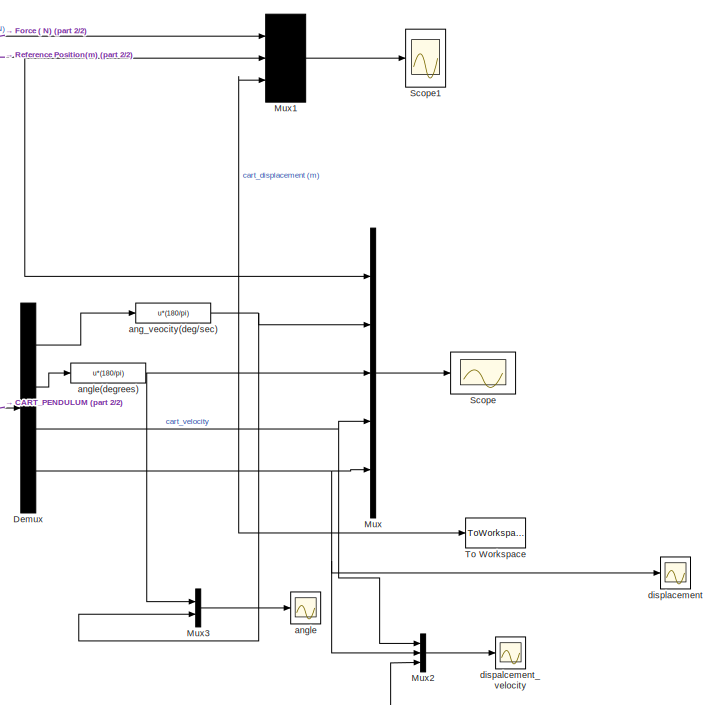
[diagram: root canvas - part 1/2, right side, full height]
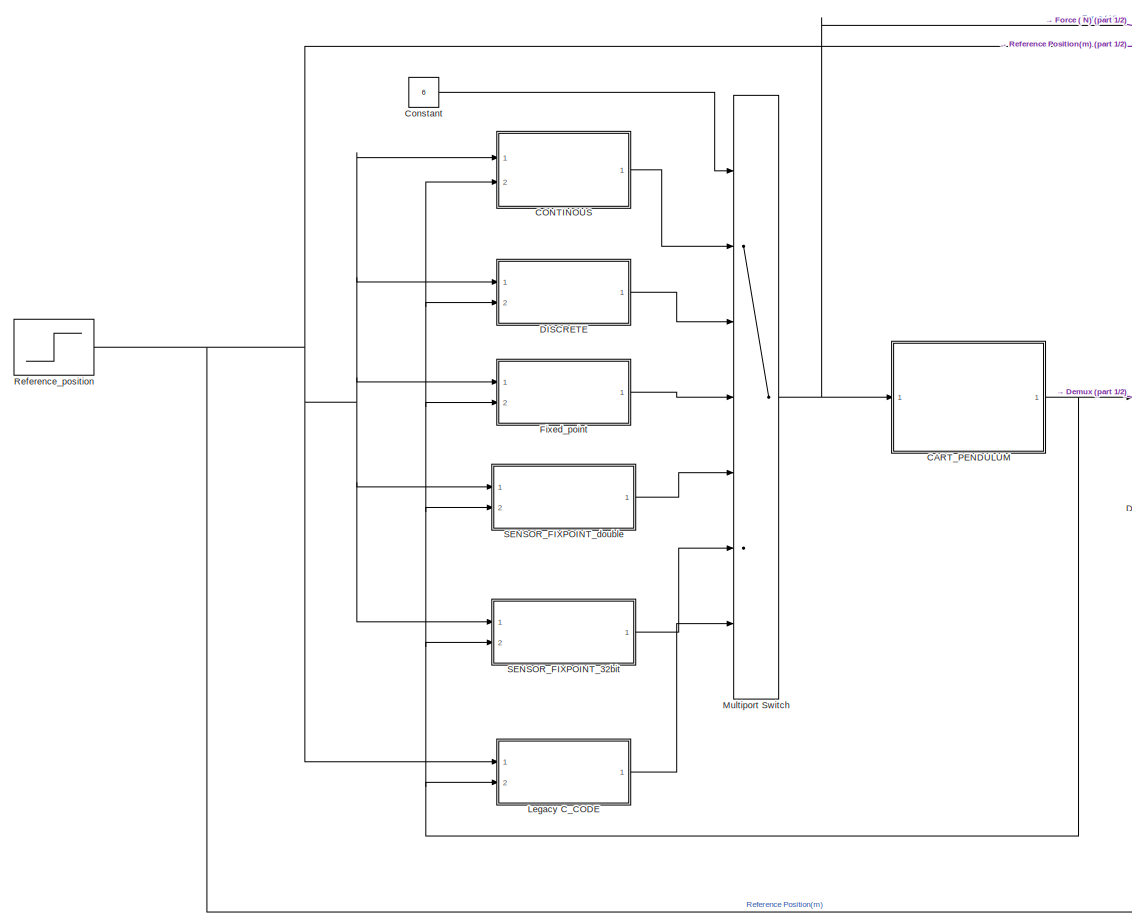
[diagram: root canvas - part 2/2, left side, full height]
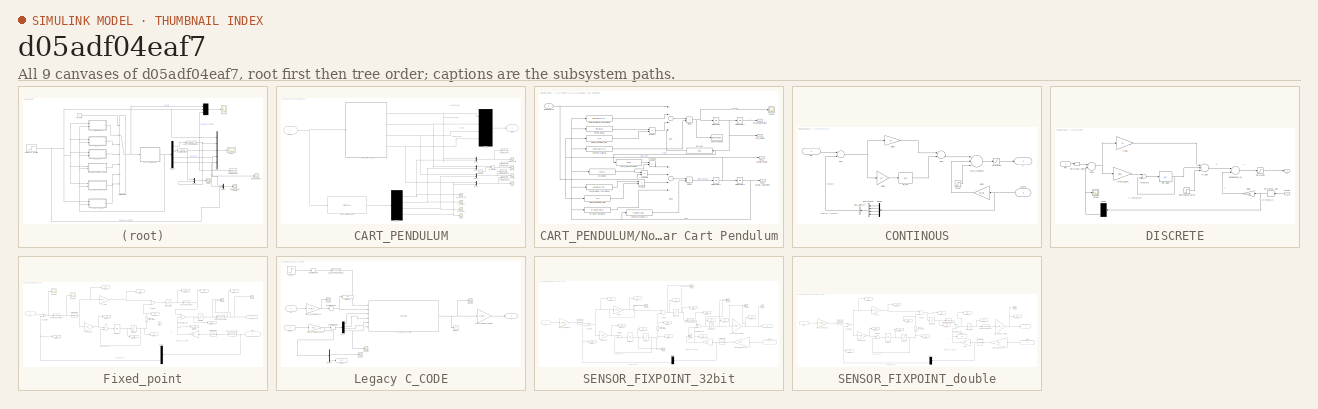
[diagram: thumbnail index - all 9 canvases of the model, root first then tree order]
MODEL slx_d05adf04eaf7
KIND model
CONFIG AbsTol = auto
CONFIG EnableMultiTasking = off
CONFIG FixedStep = 2e-3
CONFIG MaxStep = auto
CONFIG MinStep = auto
CONFIG RelTol = 1e-3
CONFIG SampleTimeConstraint = Unconstrained
CONFIG Solver = ode4
CONFIG SolverName = ode4
CONFIG StartTime = 0.0
CONFIG StopTime = 10
BLOCK [SubSystem] CART_PENDULUM
  Ports = [1, 1]
  RequestExecContextInheritance = off
BLOCK [Constant] CART_PENDULUM/Constant
  Value = 180/pi
BLOCK [Demux] CART_PENDULUM/Demux
  Ports = [1, 4]
BLOCK [Inport] CART_PENDULUM/Force (U)
  IconDisplay = Port number
BLOCK [Scope] CART_PENDULUM/Lin_alpha
  Floating = off
  NumInputPorts = 1
  Ports = [1]
  ScopeSpecificationString = Simulink.scopes.TimeScopeBlockCfg('CurrentConfiguration', extmgr.ConfigurationSet(extmgr.Configuration('Core','General UI',true,'FigureColor',[0.156862745098039 0.156862745098039 0.156862745098039]),extmgr.Configuration('Core','Source UI',true),extmgr.Configuration('Sources','WiredSimulink',true,'DataLoggingVariableName','ScopeData1','DataLoggingLimitDataPoints',true,'DataLoggingSaveFormat','Array...<+2727ch>
BLOCK [Scope] CART_PENDULUM/Lin_alpha_dot
  Floating = off
  NumInputPorts = 1
  Ports = [1]
  ScopeSpecificationString = Simulink.scopes.TimeScopeBlockCfg('CurrentConfiguration', extmgr.ConfigurationSet(extmgr.Configuration('Core','General UI',true,'FigureColor',[0.156862745098039 0.156862745098039 0.156862745098039]),extmgr.Configuration('Core','Source UI',true),extmgr.Configuration('Sources','WiredSimulink',true,'DataLoggingVariableName','ScopeData2','DataLoggingLimitDataPoints',true,'DataLoggingSaveFormat','Array...<+2727ch>
BLOCK [Scope] CART_PENDULUM/Lin_x
  Floating = off
  NumInputPorts = 1
  Ports = [1]
  ScopeSpecificationString = Simulink.scopes.TimeScopeBlockCfg('CurrentConfiguration', extmgr.ConfigurationSet(extmgr.Configuration('Core','General UI',true,'FigureColor',[0.156862745098039 0.156862745098039 0.156862745098039]),extmgr.Configuration('Core','Source UI',true),extmgr.Configuration('Sources','WiredSimulink',true,'DataLoggingVariableName','ScopeData3','DataLoggingLimitDataPoints',true,'DataLoggingSaveFormat','Array...<+2775ch>
BLOCK [Scope] CART_PENDULUM/Lin_x_dot
  Floating = off
  NumInputPorts = 1
  Ports = [1]
  ScopeSpecificationString = Simulink.scopes.TimeScopeBlockCfg('CurrentConfiguration', extmgr.ConfigurationSet(extmgr.Configuration('Core','General UI',true,'FigureColor',[0.156862745098039 0.156862745098039 0.156862745098039]),extmgr.Configuration('Core','Source UI',true),extmgr.Configuration('Sources','WiredSimulink',true,'DataLoggingVariableName','ScopeData4','DataLoggingLimitDataPoints',true,'DataLoggingSaveFormat','Array...<+2786ch>
BLOCK [StateSpace] CART_PENDULUM/Linear_Cartpendulum
  A = A
  B = B
  C = C
  D = D
  InitialCondition = x0
  Ports = [1, 1]
BLOCK [Mux] CART_PENDULUM/Mux1
  DisplayOption = bar
  Inputs = 2
  Ports = [2, 1]
BLOCK [Mux] CART_PENDULUM/Mux2
  DisplayOption = bar
  Inputs = 2
  Ports = [2, 1]
BLOCK [Mux] CART_PENDULUM/Mux3
  DisplayOption = bar
  Inputs = 2
  Ports = [2, 1]
BLOCK [Mux] CART_PENDULUM/Mux4
  DisplayOption = bar
  Inputs = 2
  Ports = [2, 1]
BLOCK [Mux] CART_PENDULUM/Mux5
  DisplayOption = signals
  Ports = [4, 1]
BLOCK [SubSystem] CART_PENDULUM/Non_linear Cart Pendulum
  Ports = [1, 4]
  RequestExecContextInheritance = off
BLOCK [Outport] CART_PENDULUM/Non_linear Cart Pendulum/                   Pend_angulardisplacement
  IconDisplay = Port number
  Port = 2
BLOCK [Outport] CART_PENDULUM/Non_linear Cart Pendulum/                   Pend_angularvelocity
  IconDisplay = Port number
BLOCK [Fcn] CART_PENDULUM/Non_linear Cart Pendulum/(M+m*sin^2(alpha))*l
  Expr = l*(M+m*((sin(u))^2))
BLOCK [Outport] CART_PENDULUM/Non_linear Cart Pendulum/Cart_Velocity
  IconDisplay = Port number
  Port = 3
BLOCK [Outport] CART_PENDULUM/Non_linear Cart Pendulum/Cart_displacement
  IconDisplay = Port number
  Port = 4
BLOCK [Inport] CART_PENDULUM/Non_linear Cart Pendulum/Driving Force
  IconDisplay = Port number
BLOCK [Fcn] CART_PENDULUM/Non_linear Cart Pendulum/M+m*sin^2(alpha)
  Expr = M+m*(sin(u)^2)
BLOCK [Scope] CART_PENDULUM/Non_linear Cart Pendulum/Scope
  Floating = off
  NumInputPorts = 1
  Ports = [1]
  ScopeSpecificationString = Simulink.scopes.TimeScopeBlockCfg('CurrentConfiguration', extmgr.ConfigurationSet(extmgr.Configuration('Core','General UI',true),extmgr.Configuration('Core','Source UI',true),extmgr.Configuration('Sources','WiredSimulink',true,'DataLoggingVariableName','ScopeData1'),extmgr.Configuration('Visuals','Time Domain',true,'SerializedDisplays',{struct('MinYLimReal','-1.8518','MaxYLimReal','8.46823','YLabe...<+1392ch>
BLOCK [Sum] CART_PENDULUM/Non_linear Cart Pendulum/Sum
  InputSameDT = off
  Inputs = +++-
  OutDataTypeStr = Inherit: Inherit via internal rule
  Ports = [4, 1]
  SaturateOnIntegerOverflow = off
BLOCK [Sum] CART_PENDULUM/Non_linear Cart Pendulum/Sum1
  InputSameDT = off
  Inputs = +---
  OutDataTypeStr = Inherit: Inherit via internal rule
  Ports = [4, 1]
  SaturateOnIntegerOverflow = off
BLOCK [ToWorkspace] CART_PENDULUM/Non_linear Cart Pendulum/To Workspace
  FixptAsFi = on
  MaxDataPoints = inf
  Ports = [1]
  SampleTime = -1
  Save2DSignal = 3-D array (concatenate along third dimension)
  SaveFormat = Timeseries
  VariableName = acceleration
BLOCK [Fcn] CART_PENDULUM/Non_linear Cart Pendulum/alpha_dot*alpha_dot
  Expr = u*u
BLOCK [Fcn] CART_PENDULUM/Non_linear Cart Pendulum/alpha_dot*alpha_dot1
  Expr = u*u
BLOCK [Fcn] CART_PENDULUM/Non_linear Cart Pendulum/cos(alpha)
  Expr = cos(u)
BLOCK [Product] CART_PENDULUM/Non_linear Cart Pendulum/divide
  InputSameDT = off
  Inputs = */
  OutDataTypeStr = Inherit: Inherit via internal rule
  Ports = [2, 1]
  RndMeth = Floor
  SaturateOnIntegerOverflow = off
BLOCK [Product] CART_PENDULUM/Non_linear Cart Pendulum/divide1
  InputSameDT = off
  Inputs = */
  OutDataTypeStr = Inherit: Inherit via internal rule
  Ports = [2, 1]
  RndMeth = Floor
  SaturateOnIntegerOverflow = off
BLOCK [Fcn] CART_PENDULUM/Non_linear Cart Pendulum/g*(M+m)*sin(alpha)
  Expr = g*(M+m)*sin(u)
BLOCK [Integrator] CART_PENDULUM/Non_linear Cart Pendulum/integerator
  Ports = [1, 1]
BLOCK [Integrator] CART_PENDULUM/Non_linear Cart Pendulum/integerator1
  Ports = [1, 1]
BLOCK [Integrator] CART_PENDULUM/Non_linear Cart Pendulum/integerator2
  Ports = [1, 1]
BLOCK [Integrator] CART_PENDULUM/Non_linear Cart Pendulum/integerator3
  Ports = [1, 1]
BLOCK [Fcn] CART_PENDULUM/Non_linear Cart Pendulum/kf*X_dot
  Expr = kf*u
BLOCK [Fcn] CART_PENDULUM/Non_linear Cart Pendulum/kf*l*X_dot*cos(alpha)    
  Expr = kf*l*u
BLOCK [Fcn] CART_PENDULUM/Non_linear Cart Pendulum/m*g*sin(alpha)*cos(alpha)
  Expr = m*g*sin(u)*cos(u)
BLOCK [Fcn] CART_PENDULUM/Non_linear Cart Pendulum/m*l*sin(alpha)
  Expr = m*l*sin(u)
BLOCK [Fcn] CART_PENDULUM/Non_linear Cart Pendulum/m*l*sin(alpha)*cos(alpha)
  Expr = m*l*sin(u)*cos(u)
BLOCK [Product] CART_PENDULUM/Non_linear Cart Pendulum/product
  InputSameDT = off
  OutDataTypeStr = Inherit: Inherit via internal rule
  Ports = [2, 1]
  RndMeth = Floor
  SaturateOnIntegerOverflow = off
BLOCK [Product] CART_PENDULUM/Non_linear Cart Pendulum/product1
  InputSameDT = off
  OutDataTypeStr = Inherit: Inherit via internal rule
  Ports = [2, 1]
  RndMeth = Floor
  SaturateOnIntegerOverflow = off
BLOCK [Product] CART_PENDULUM/Non_linear Cart Pendulum/product2
  InputSameDT = off
  OutDataTypeStr = Inherit: Inherit via internal rule
  Ports = [2, 1]
  RndMeth = Floor
  SaturateOnIntegerOverflow = off
BLOCK [Product] CART_PENDULUM/Non_linear Cart Pendulum/product3
  InputSameDT = off
  OutDataTypeStr = Inherit: Inherit via internal rule
  Ports = [2, 1]
  RndMeth = Floor
  SaturateOnIntegerOverflow = off
BLOCK [Outport] CART_PENDULUM/States
  IconDisplay = Port number
BLOCK [ToWorkspace] CART_PENDULUM/To Workspace
  FixptAsFi = on
  MaxDataPoints = inf
  Ports = [1]
  SampleTime = -1
  Save2DSignal = 3-D array (concatenate along third dimension)
  SaveFormat = Timeseries
  VariableName = angularvelocity
BLOCK [ToWorkspace] CART_PENDULUM/To Workspace1
  FixptAsFi = on
  MaxDataPoints = inf
  Ports = [1]
  SampleTime = -1
  Save2DSignal = 3-D array (concatenate along third dimension)
  SaveFormat = Timeseries
  VariableName = angle
BLOCK [ToWorkspace] CART_PENDULUM/To Workspace2
  FixptAsFi = on
  MaxDataPoints = inf
  Ports = [1]
  SampleTime = -1
  Save2DSignal = 3-D array (concatenate along third dimension)
  SaveFormat = Timeseries
  VariableName = angle1
BLOCK [ToWorkspace] CART_PENDULUM/To Workspace3
  FixptAsFi = on
  MaxDataPoints = inf
  Ports = [1]
  SampleTime = -1
  Save2DSignal = 3-D array (concatenate along third dimension)
  SaveFormat = Timeseries
  VariableName = angle2
BLOCK [Scope] CART_PENDULUM/alpha1
  Floating = off
  NumInputPorts = 1
  Ports = [1]
  ScopeSpecificationString = Simulink.scopes.TimeScopeBlockCfg('CurrentConfiguration', extmgr.ConfigurationSet(extmgr.Configuration('Core','General UI',true,'FigureColor',[0.156862745098039 0.156862745098039 0.156862745098039]),extmgr.Configuration('Core','Source UI',true),extmgr.Configuration('Sources','WiredSimulink',true,'DataLoggingVariableName','ScopeData5','DataLoggingSaveFormat','Array','DataLoggingDecimation','1','Dat...<+2693ch>
BLOCK [Scope] CART_PENDULUM/alpha_dot2
  Floating = off
  NumInputPorts = 1
  Ports = [1]
  ScopeSpecificationString = Simulink.scopes.TimeScopeBlockCfg('CurrentConfiguration', extmgr.ConfigurationSet(extmgr.Configuration('Core','General UI',true,'FigureColor',[0.156862745098039 0.156862745098039 0.156862745098039]),extmgr.Configuration('Core','Source UI',true),extmgr.Configuration('Sources','WiredSimulink',true,'DataLoggingVariableName','ScopeData6','DataLoggingLimitDataPoints',true,'DataLoggingSaveFormat','Array...<+2716ch>
BLOCK [Product] CART_PENDULUM/to_degrees
  InputSameDT = off
  Inputs = **
  OutDataTypeStr = Inherit: Inherit via internal rule
  Ports = [2, 1]
  RndMeth = Floor
  SaturateOnIntegerOverflow = off
BLOCK [Scope] CART_PENDULUM/x2
  Floating = off
  NumInputPorts = 1
  Ports = [1]
  ScopeSpecificationString = Simulink.scopes.TimeScopeBlockCfg('CurrentConfiguration', extmgr.ConfigurationSet(extmgr.Configuration('Core','General UI',true,'FigureColor',[0.156862745098039 0.156862745098039 0.156862745098039]),extmgr.Configuration('Core','Source UI',true),extmgr.Configuration('Sources','WiredSimulink',true,'DataLoggingVariableName','ScopeData7','DataLoggingSaveFormat','Array','DataLoggingDecimation','1','Dat...<+2844ch>
BLOCK [Scope] CART_PENDULUM/x_dot2
  Floating = off
  NumInputPorts = 1
  Ports = [1]
  ScopeSpecificationString = Simulink.scopes.TimeScopeBlockCfg('CurrentConfiguration', extmgr.ConfigurationSet(extmgr.Configuration('Core','General UI',true,'FigureColor',[0.156862745098039 0.156862745098039 0.156862745098039]),extmgr.Configuration('Core','Source UI',true),extmgr.Configuration('Sources','WiredSimulink',true,'DataLoggingVariableName','ScopeData8','DataLoggingLimitDataPoints',true,'DataLoggingSaveFormat','Array...<+2727ch>
BLOCK [SubSystem] CONTINOUS
  Ports = [2, 1]
  RequestExecContextInheritance = off
BLOCK [Sum] CONTINOUS/Add4
  InputSameDT = off
  OutDataTypeStr = Inherit: Inherit via internal rule
  Ports = [2, 1]
  SaturateOnIntegerOverflow = off
BLOCK [BusCreator] CONTINOUS/Bus Creator
  DisplayOption = bar
  InheritFromInputs = on
  Inputs = 4
  Ports = [4, 1]
BLOCK [BusSelector] CONTINOUS/Bus Selector
  OutputAsBus = off
  OutputSignals = signal4
  Ports = [1, 1]
BLOCK [Demux] CONTINOUS/Demux
  DisplayOption = bar
  Ports = [1, 4]
BLOCK [Gain] CONTINOUS/Gain2
  Gain = kt_pi
  Multiplication = Matrix(K*u) (u vector)
  OutDataTypeStr = Inherit: Inherit via internal rule
  ParamDataTypeStr = Inherit: Inherit via internal rule
  SaturateOnIntegerOverflow = off
BLOCK [Gain] CONTINOUS/Gain3
  Gain = ki
  OutDataTypeStr = Inherit: Inherit via internal rule
  ParamDataTypeStr = Inherit: Inherit via internal rule
  SaturateOnIntegerOverflow = off
BLOCK [Gain] CONTINOUS/Gain5
  Gain = p
  OutDataTypeStr = Inherit: Inherit via internal rule
  ParamDataTypeStr = Inherit: Inherit via internal rule
  SaturateOnIntegerOverflow = off
BLOCK [Inport] CONTINOUS/Ref
  IconDisplay = Port number
BLOCK [Saturate] CONTINOUS/Saturation
  InputPortMap = u0
  LowerLimit = -10
  Ports = [1, 1]
  UpperLimit = 10
BLOCK [Sum] CONTINOUS/State_feedback
  InputSameDT = off
  Inputs = +-+
  OutDataTypeStr = Inherit: Inherit via internal rule
  Ports = [3, 1]
  SaturateOnIntegerOverflow = off
BLOCK [Inport] CONTINOUS/States
  IconDisplay = Port number
  Port = 2
BLOCK [Step] CONTINOUS/Step1
  After = 0
  SampleTime = 0
  Time = 10
BLOCK [Sum] CONTINOUS/Sum
  InputSameDT = off
  Inputs = +-
  OutDataTypeStr = Inherit: Inherit via internal rule
  Ports = [2, 1]
  SaturateOnIntegerOverflow = off
BLOCK [Outport] CONTINOUS/U
  IconDisplay = Port number
BLOCK [Integrator] CONTINOUS/lin_acc
  Ports = [1, 1]
BLOCK [Constant] Constant
  Value = 6
BLOCK [SubSystem] DISCRETE
  Ports = [2, 1]
  RequestExecContextInheritance = off
BLOCK [Demux] DISCRETE/Demux
  DisplayOption = bar
  Ports = [1, 4]
BLOCK [Step] DISCRETE/Disturbance_Force
  After = 0
  SampleTime = Ts
  Time = 0
BLOCK [Gain] DISCRETE/Gain2
  Gain = kt_dg
  Multiplication = Matrix(K*u) (u vector)
  OutDataTypeStr = Inherit: Inherit via internal rule
  ParamDataTypeStr = Inherit: Inherit via internal rule
  SaturateOnIntegerOverflow = off
BLOCK [Gain] DISCRETE/Integral_gain1
  Gain = ki_d
  OutDataTypeStr = Inherit: Inherit via internal rule
  ParamDataTypeStr = Inherit: Inherit via internal rule
  SaturateOnIntegerOverflow = off
BLOCK [Sum] DISCRETE/Integrate
  InputSameDT = off
  OutDataTypeStr = Inherit: Inherit via internal rule
  Ports = [2, 1]
  SaturateOnIntegerOverflow = off
BLOCK [Sum] DISCRETE/Manipulating_Var
  InputSameDT = off
  Inputs = +-
  OutDataTypeStr = Inherit: Inherit via internal rule
  Ports = [2, 1]
  SaturateOnIntegerOverflow = off
BLOCK [Sum] DISCRETE/PI_gain
  InputSameDT = off
  Inputs = ++-
  OutDataTypeStr = Inherit: Inherit via internal rule
  Ports = [3, 1]
  SaturateOnIntegerOverflow = off
BLOCK [Gain] DISCRETE/P_gain
  Gain = p
  OutDataTypeStr = Inherit: Inherit via internal rule
  ParamDataTypeStr = Inherit: Inherit via internal rule
  SaturateOnIntegerOverflow = off
BLOCK [Inport] DISCRETE/Ref
  IconDisplay = Port number
BLOCK [Saturate] DISCRETE/Saturation
  InputPortMap = u0
  LowerLimit = -10
  Ports = [1, 1]
  UpperLimit = 10
BLOCK [Scope] DISCRETE/Scope
  Floating = off
  NumInputPorts = 1
  Ports = [1]
  ScopeSpecificationString = C++SS(StrPVP('Location','[488, 222, 1048, 642]'),StrPVP('Open','off'),MxPVP('AxesTitles',53,'struct(''axes1'',''%<SignalLabel>'')'),MxPVP('ScopeGraphics',56,'struct(''FigureColor'',''[0.156862745098039 0.156862745098039 0.156862745098039]'',''AxesColor'',''[0 0 0]'',''AxesTickColor'',''[0.686274509803922 0.686274509803922 0.686274509803922]'',''LineColors'',''[1 1 0;1 0 1;0 1 1;1 0 0;0 1 0;0 0 1]'...<+379ch>
BLOCK [Inport] DISCRETE/States
  IconDisplay = Port number
  Port = 2
BLOCK [Sum] DISCRETE/Sum1
  InputSameDT = off
  Inputs = +-
  OutDataTypeStr = Inherit: Inherit via internal rule
  Ports = [2, 1]
  SaturateOnIntegerOverflow = off
BLOCK [Outport] DISCRETE/U
  IconDisplay = Port number
BLOCK [UnitDelay] DISCRETE/Unit Delay
  InputProcessing = Elements as channels (sample based)
  SampleTime = Ts
BLOCK [ZeroOrderHold] DISCRETE/Zero-Order Hold
  SampleTime = Ts
BLOCK [ZeroOrderHold] DISCRETE/Zero-Order Hold1
  SampleTime = Ts
BLOCK [Demux] Demux
  DisplayOption = bar
  Ports = [1, 4]
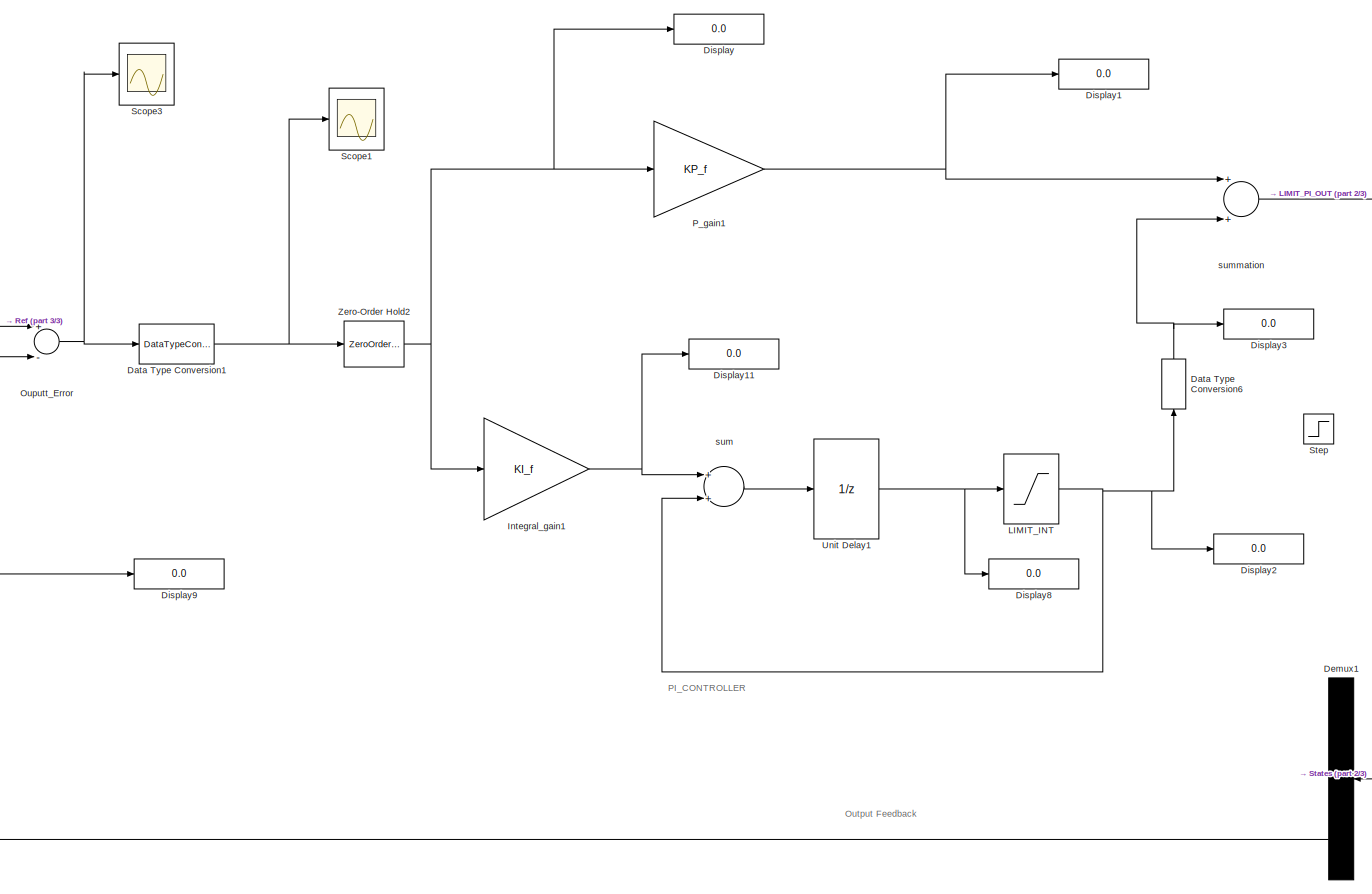
[diagram: Fixed_point - part 1/3, left side, full height]
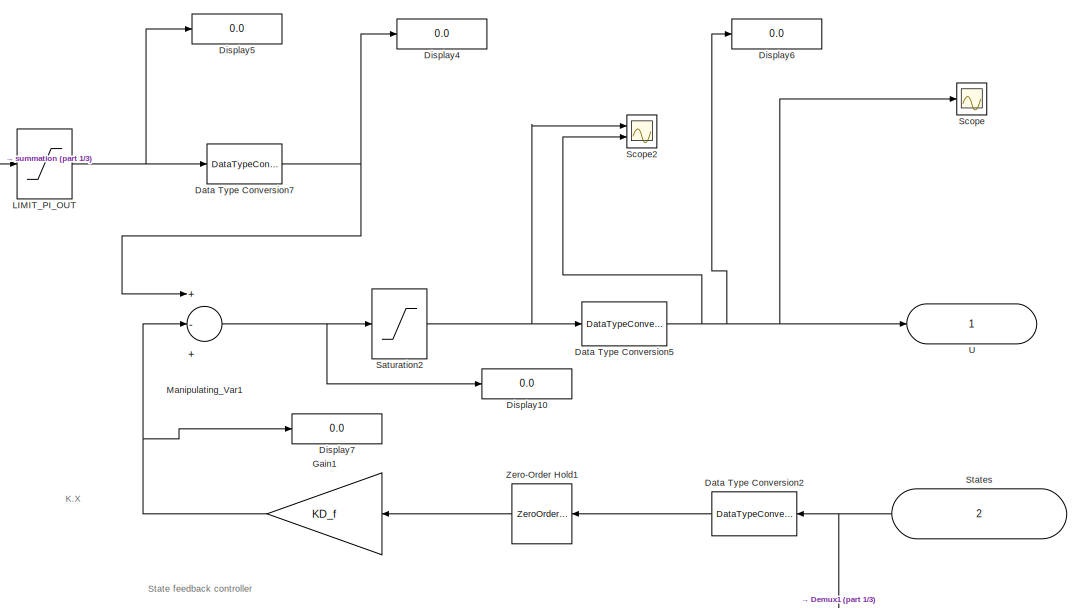
[diagram: Fixed_point - part 2/3, middle right region]
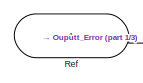
[diagram: Fixed_point - part 3/3, middle left region]
BLOCK [SubSystem] Fixed_point
  Ports = [2, 1]
  RequestExecContextInheritance = off
BLOCK [DataTypeConversion] Fixed_point/Data Type Conversion1
  OutDataTypeStr = fixdt(1,16,10)
  RndMeth = Floor
  SaturateOnIntegerOverflow = off
BLOCK [DataTypeConversion] Fixed_point/Data Type Conversion2
  OutDataTypeStr = fixdt(1,16,10)
  RndMeth = Floor
  SaturateOnIntegerOverflow = off
BLOCK [DataTypeConversion] Fixed_point/Data Type Conversion5
  OutDataTypeStr = double
  RndMeth = Floor
  SaturateOnIntegerOverflow = off
BLOCK [DataTypeConversion] Fixed_point/Data Type Conversion6
  OutDataTypeStr = fixdt(1,32,19)
  RndMeth = Floor
  SaturateOnIntegerOverflow = off
BLOCK [DataTypeConversion] Fixed_point/Data Type Conversion7
  OutDataTypeStr = fixdt(1,32,19)
  RndMeth = Floor
  SaturateOnIntegerOverflow = off
BLOCK [Demux] Fixed_point/Demux1
  Ports = [1, 4]
BLOCK [Display] Fixed_point/Display
  Decimation = 1
  Ports = [1]
BLOCK [Display] Fixed_point/Display1
  Decimation = 1
  Ports = [1]
BLOCK [Display] Fixed_point/Display10
  Decimation = 1
  Ports = [1]
BLOCK [Display] Fixed_point/Display11
  Decimation = 1
  Ports = [1]
BLOCK [Display] Fixed_point/Display2
  Decimation = 1
  Ports = [1]
BLOCK [Display] Fixed_point/Display3
  Decimation = 1
  Ports = [1]
BLOCK [Display] Fixed_point/Display4
  Decimation = 1
  Format = long
  Ports = [1]
BLOCK [Display] Fixed_point/Display5
  Decimation = 1
  Ports = [1]
BLOCK [Display] Fixed_point/Display6
  Decimation = 1
  Ports = [1]
BLOCK [Display] Fixed_point/Display7
  Decimation = 1
  Format = long
  Ports = [1]
BLOCK [Display] Fixed_point/Display8
  Decimation = 1
  Ports = [1]
BLOCK [Display] Fixed_point/Display9
  Decimation = 1
  Ports = [1]
BLOCK [Gain] Fixed_point/Gain1
  Gain = KD_f
  Multiplication = Matrix(K*u) (u vector)
  OutDataTypeStr = Inherit: Inherit via internal rule
  ParamDataTypeStr = fixdt(1,16,8)
  SaturateOnIntegerOverflow = off
BLOCK [Gain] Fixed_point/Integral_gain1
  Gain = KI_f
  OutDataTypeStr = Inherit: Inherit via internal rule
  ParamDataTypeStr = fixdt(1,16,14)
  SaturateOnIntegerOverflow = off
BLOCK [Saturate] Fixed_point/LIMIT_INT
  InputPortMap = u0
  LowerLimit = -16777216
  Ports = [1, 1]
  UpperLimit = 16777216
BLOCK [Saturate] Fixed_point/LIMIT_PI_OUT
  InputPortMap = u0
  LowerLimit = -524288
  Ports = [1, 1]
  UpperLimit = 524288
BLOCK [Sum] Fixed_point/Manipulating_Var1
  InputSameDT = off
  Inputs = +-+
  OutDataTypeStr = Inherit: Inherit via internal rule
  Ports = [3, 1]
  SaturateOnIntegerOverflow = off
BLOCK [Sum] Fixed_point/Ouputt_Error
  InputSameDT = off
  Inputs = +-
  OutDataTypeStr = Inherit: Inherit via internal rule
  Ports = [2, 1]
  SaturateOnIntegerOverflow = off
BLOCK [Gain] Fixed_point/P_gain1
  Gain = KP_f
  OutDataTypeStr = Inherit: Inherit via internal rule
  ParamDataTypeStr = fixdt(1,16,9)
  SaturateOnIntegerOverflow = off
BLOCK [Inport] Fixed_point/Ref
  IconDisplay = Port number
BLOCK [Saturate] Fixed_point/Saturation2
  InputPortMap = u0
  LowerLimit = -10
  Ports = [1, 1]
  UpperLimit = 10
BLOCK [Scope] Fixed_point/Scope
  Floating = off
  NumInputPorts = 1
  Ports = [1]
  ScopeSpecificationString = C++SS(StrPVP('Location','[188, 365, 512, 604]'),StrPVP('Open','off'),MxPVP('AxesTitles',53,'struct(''axes1'',''%<SignalLabel>'')'),MxPVP('ScopeGraphics',56,'struct(''FigureColor'',''[0.156862745098039 0.156862745098039 0.156862745098039]'',''AxesColor'',''[0 0 0]'',''AxesTickColor'',''[0.686274509803922 0.686274509803922 0.686274509803922]'',''LineColors'',''[1 1 0;1 0 1;0 1 1;1 0 0;0 1 0;0 0 1]''...<+381ch>
BLOCK [Scope] Fixed_point/Scope1
  Floating = off
  NumInputPorts = 1
  Ports = [1]
  ScopeSpecificationString = C++SS(StrPVP('Location','[188, 365, 512, 604]'),StrPVP('Open','off'),MxPVP('AxesTitles',53,'struct(''axes1'',''%<SignalLabel>'')'),MxPVP('ScopeGraphics',56,'struct(''FigureColor'',''[0.156862745098039 0.156862745098039 0.156862745098039]'',''AxesColor'',''[0 0 0]'',''AxesTickColor'',''[0.686274509803922 0.686274509803922 0.686274509803922]'',''LineColors'',''[1 1 0;1 0 1;0 1 1;1 0 0;0 1 0;0 0 1]''...<+380ch>
BLOCK [Scope] Fixed_point/Scope2
  Floating = off
  NumInputPorts = 2
  Ports = [2]
  ScopeSpecificationString = C++SS(StrPVP('Location','[188, 365, 512, 604]'),StrPVP('Open','off'),MxPVP('AxesTitles',53,'struct(''axes1'',''%<SignalLabel>'',''axes2'',''%<SignalLabel>'')'),MxPVP('ScopeGraphics',56,'struct(''FigureColor'',''[0.156862745098039 0.156862745098039 0.156862745098039]'',''AxesColor'',''[0 0 0]'',''AxesTickColor'',''[0.686274509803922 0.686274509803922 0.686274509803922]'',''LineColors'',''[1 1 0;1 0...<+414ch>
BLOCK [Scope] Fixed_point/Scope3
  Floating = off
  NumInputPorts = 1
  Ports = [1]
  ScopeSpecificationString = C++SS(StrPVP('Location','[188, 365, 512, 604]'),StrPVP('Open','off'),MxPVP('AxesTitles',53,'struct(''axes1'',''%<SignalLabel>'')'),MxPVP('ScopeGraphics',56,'struct(''FigureColor'',''[0.156862745098039 0.156862745098039 0.156862745098039]'',''AxesColor'',''[0 0 0]'',''AxesTickColor'',''[0.686274509803922 0.686274509803922 0.686274509803922]'',''LineColors'',''[1 1 0;1 0 1;0 1 1;1 0 0;0 1 0;0 0 1]''...<+374ch>
BLOCK [Inport] Fixed_point/States
  IconDisplay = Port number
  Port = 2
BLOCK [Step] Fixed_point/Step
  After = 10
  SampleTime = 0
  Time = 15
BLOCK [Outport] Fixed_point/U
  IconDisplay = Port number
BLOCK [UnitDelay] Fixed_point/Unit Delay1
  InputProcessing = Elements as channels (sample based)
  SampleTime = Ts
BLOCK [ZeroOrderHold] Fixed_point/Zero-Order Hold1
  SampleTime = Ts
BLOCK [ZeroOrderHold] Fixed_point/Zero-Order Hold2
  SampleTime = Ts
BLOCK [Sum] Fixed_point/sum
  InputSameDT = off
  OutDataTypeStr = Inherit: Inherit via internal rule
  Ports = [2, 1]
  SaturateOnIntegerOverflow = off
BLOCK [Sum] Fixed_point/summation
  InputSameDT = off
  OutDataTypeStr = Inherit: Inherit via internal rule
  Ports = [2, 1]
  SaturateOnIntegerOverflow = off
BLOCK [SubSystem] Legacy C_CODE
  Ports = [2, 1]
  RequestExecContextInheritance = off
BLOCK [Gain] Legacy C_CODE/ DAC counts to physical force
  Gain = F_0/F_i
  OutDataTypeStr = double
  ParamDataTypeStr = double
  SaturateOnIntegerOverflow = off
BLOCK [DataTypeConversion] Legacy C_CODE/Data Type Conversion2
  OutDataTypeStr = int8
  RndMeth = Floor
  SaturateOnIntegerOverflow = off
BLOCK [Demux] Legacy C_CODE/Demux
  DisplayOption = bar
  Ports = [1, 4]
BLOCK [Demux] Legacy C_CODE/Demux1
  DisplayOption = bar
  Ports = [1, 4]
BLOCK [Display] Legacy C_CODE/Display
  Decimation = 1
  Ports = [1]
BLOCK [Display] Legacy C_CODE/Display1
  Decimation = 1
  Format = long
  Ports = [1]
BLOCK [Display] Legacy C_CODE/Display2
  Decimation = 1
  Ports = [1]
BLOCK [Gain] Legacy C_CODE/Fixed_point_reference2
  Gain = x_i/x_0
  OutDataTypeStr = int16
  ParamDataTypeStr = Inherit: Inherit via internal rule
  SaturateOnIntegerOverflow = off
BLOCK [Step] Legacy C_CODE/RESET
  After = 0
  Before = 1
  SampleTime = Ts
  Time = 3*Ts
BLOCK [Inport] Legacy C_CODE/Ref
  IconDisplay = Port number
BLOCK [Scope] Legacy C_CODE/Scope1
  Floating = off
  NumInputPorts = 1
  Ports = [1]
  ScopeSpecificationString = C++SS(StrPVP('Location','[10, 60, 1364, 738]'),StrPVP('Open','off'),MxPVP('AxesTitles',53,'struct(''axes1'',''%<SignalLabel>'')'),MxPVP('ScopeGraphics',56,'struct(''FigureColor'',''[0.156862745098039 0.156862745098039 0.156862745098039]'',''AxesColor'',''[0 0 0]'',''AxesTickColor'',''[0.686274509803922 0.686274509803922 0.686274509803922]'',''LineColors'',''[1 1 0;1 0 1;0 1 1;1 0 0;0 1 0;0 0 1]'',...<+398ch>
BLOCK [Scope] Legacy C_CODE/Scope2
  Floating = off
  NumInputPorts = 1
  Ports = [1]
  ScopeSpecificationString = Simulink.scopes.TimeScopeBlockCfg('CurrentConfiguration', extmgr.ConfigurationSet(extmgr.Configuration('Core','General UI',true,'FigureColor',[0.156862745098039 0.156862745098039 0.156862745098039]),extmgr.Configuration('Core','Source UI',true),extmgr.Configuration('Sources','WiredSimulink',true,'DataLoggingVariableName','ScopeData8','DataLoggingLimitDataPoints',true,'DataLoggingSaveFormat','Array...<+2910ch>
BLOCK [Scope] Legacy C_CODE/Scope3
  Floating = off
  NumInputPorts = 1
  Ports = [1]
  ScopeSpecificationString = C++SS(StrPVP('Location','[5, 48, 1925, 1039]'),StrPVP('Open','off'),MxPVP('AxesTitles',53,'struct(''axes1'',''%<SignalLabel>'')'),MxPVP('ScopeGraphics',56,'struct(''FigureColor'',''[0.156862745098039 0.156862745098039 0.156862745098039]'',''AxesColor'',''[0 0 0]'',''AxesTickColor'',''[0.686274509803922 0.686274509803922 0.686274509803922]'',''LineColors'',''[1 1 0;1 0 1;0 1 1;1 0 0;0 1 0;0 0 1]'',...<+399ch>
BLOCK [Scope] Legacy C_CODE/Scope4
  Floating = off
  NumInputPorts = 1
  Ports = [1]
  ScopeSpecificationString = C++SS(StrPVP('Location','[10, 60, 1364, 738]'),StrPVP('Open','off'),MxPVP('AxesTitles',53,'struct(''axes1'',''%<SignalLabel>'')'),MxPVP('ScopeGraphics',56,'struct(''FigureColor'',''[0.156862745098039 0.156862745098039 0.156862745098039]'',''AxesColor'',''[0 0 0]'',''AxesTickColor'',''[0.686274509803922 0.686274509803922 0.686274509803922]'',''LineColors'',''[1 1 0;1 0 1;0 1 1;1 0 0;0 1 0;0 0 1]'',...<+399ch>
BLOCK [Inport] Legacy C_CODE/States
  IconDisplay = Port number
  Port = 2
BLOCK [Gain] Legacy C_CODE/States: actual to Fixed point1
  Gain = kd_i
  Multiplication = Matrix(K*u) (u vector)
  OutDataTypeStr = int16
  ParamDataTypeStr = Inherit: Inherit via internal rule
  SaturateOnIntegerOverflow = off
BLOCK [Outport] Legacy C_CODE/U
  IconDisplay = Port number
BLOCK [ZeroOrderHold] Legacy C_CODE/Zero-Order Hold1
  SampleTime = Ts
BLOCK [ZeroOrderHold] Legacy C_CODE/Zero-Order Hold2
  SampleTime = Ts
BLOCK [ZeroOrderHold] Legacy C_CODE/Zero-Order Hold3
  SampleTime = Ts
BLOCK [S-Function] Legacy C_CODE/ex_sfun_pos_contr1
  EnableBusSupport = off
  FunctionName = ex_sfun_pos_contr
  Ports = [6, 1]
  SFcnIsStateOwnerBlock = off
  SFunctionDeploymentMode = off
BLOCK [MultiPortSwitch] Multiport Switch
  InputSameDT = off
  Inputs = 6
  Ports = [7, 1]
  SaturateOnIntegerOverflow = off
BLOCK [Mux] Mux
  DisplayOption = bar
  Inputs = 5
  Ports = [5, 1]
BLOCK [Mux] Mux1
  Inputs = 3
  Ports = [3, 1]
BLOCK [Mux] Mux2
  DisplayOption = bar
  Inputs = 3
  Ports = [3, 1]
BLOCK [Mux] Mux3
  DisplayOption = bar
  Inputs = 2
  Ports = [2, 1]
BLOCK [Step] Reference_position
  SampleTime = 0
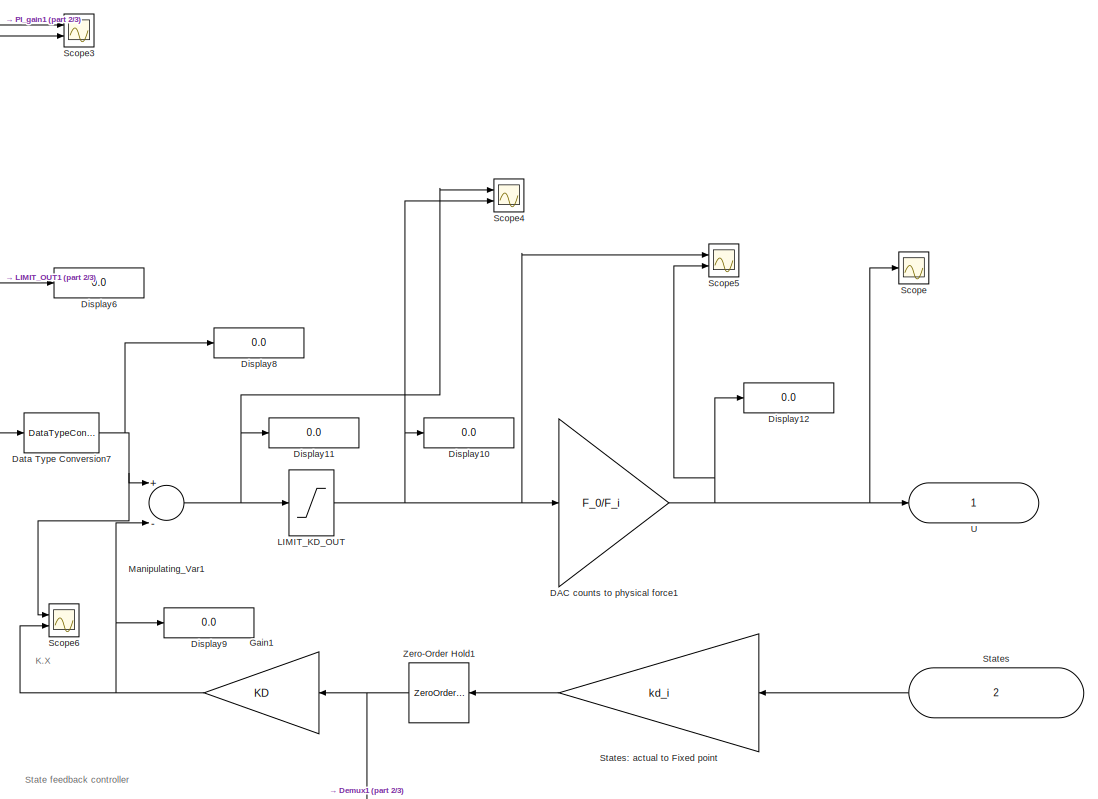
[diagram: SENSOR_FIXPOINT_32bit - part 1/3, right side, full height]
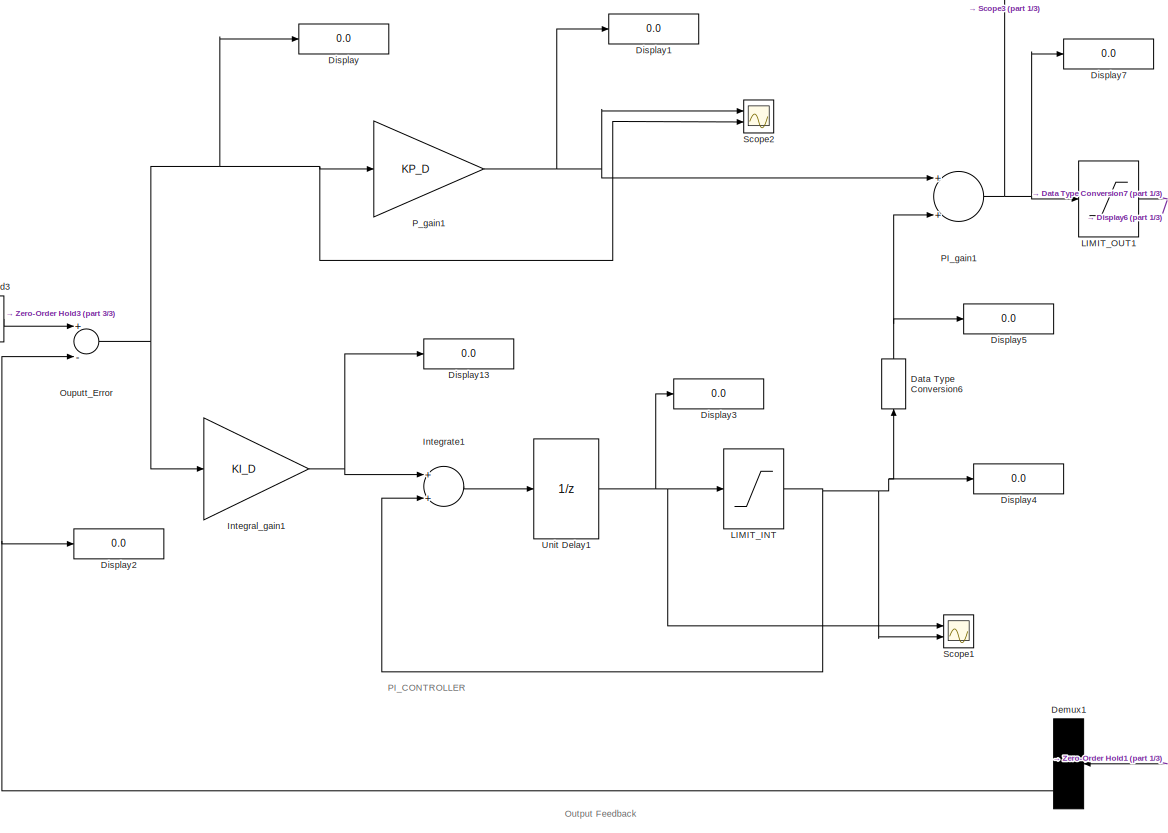
[diagram: SENSOR_FIXPOINT_32bit - part 2/3, center side, full height]
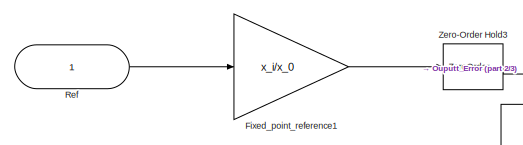
[diagram: SENSOR_FIXPOINT_32bit - part 3/3, middle left region]
BLOCK [SubSystem] SENSOR_FIXPOINT_32bit
  Ports = [2, 1]
  RequestExecContextInheritance = off
BLOCK [Gain] SENSOR_FIXPOINT_32bit/ DAC counts to physical force1
  Gain = F_0/F_i
  OutDataTypeStr = double
  ParamDataTypeStr = double
  SaturateOnIntegerOverflow = off
BLOCK [DataTypeConversion] SENSOR_FIXPOINT_32bit/Data Type Conversion6
  OutDataTypeStr = fixdt(1,32,KP_SHIFT)
  RndMeth = Floor
  SaturateOnIntegerOverflow = off
BLOCK [DataTypeConversion] SENSOR_FIXPOINT_32bit/Data Type Conversion7
  OutDataTypeStr = fixdt(1,32,KD_SHIFT)
  RndMeth = Floor
  SaturateOnIntegerOverflow = off
BLOCK [Demux] SENSOR_FIXPOINT_32bit/Demux1
  DisplayOption = bar
  Ports = [1, 4]
BLOCK [Display] SENSOR_FIXPOINT_32bit/Display
  Decimation = 1
  Format = long
  Ports = [1]
BLOCK [Display] SENSOR_FIXPOINT_32bit/Display1
  Decimation = 1
  Ports = [1]
BLOCK [Display] SENSOR_FIXPOINT_32bit/Display10
  Decimation = 1
  Ports = [1]
BLOCK [Display] SENSOR_FIXPOINT_32bit/Display11
  Decimation = 1
  Ports = [1]
BLOCK [Display] SENSOR_FIXPOINT_32bit/Display12
  Decimation = 1
  Ports = [1]
BLOCK [Display] SENSOR_FIXPOINT_32bit/Display13
  Decimation = 1
  Ports = [1]
BLOCK [Display] SENSOR_FIXPOINT_32bit/Display2
  Decimation = 1
  Format = long
  Ports = [1]
BLOCK [Display] SENSOR_FIXPOINT_32bit/Display3
  Decimation = 1
  Ports = [1]
BLOCK [Display] SENSOR_FIXPOINT_32bit/Display4
  Decimation = 1
  Format = long
  Ports = [1]
BLOCK [Display] SENSOR_FIXPOINT_32bit/Display5
  Decimation = 1
  Format = long
  Ports = [1]
BLOCK [Display] SENSOR_FIXPOINT_32bit/Display6
  Decimation = 1
  Format = long
  Ports = [1]
BLOCK [Display] SENSOR_FIXPOINT_32bit/Display7
  Decimation = 1
  Format = long
  Ports = [1]
BLOCK [Display] SENSOR_FIXPOINT_32bit/Display8
  Decimation = 1
  Format = long
  Ports = [1]
BLOCK [Display] SENSOR_FIXPOINT_32bit/Display9
  Decimation = 1
  Format = long
  Ports = [1]
BLOCK [Gain] SENSOR_FIXPOINT_32bit/Fixed_point_reference1
  Gain = x_i/x_0
  OutDataTypeStr = int16
  ParamDataTypeStr = Inherit: Inherit via internal rule
  SaturateOnIntegerOverflow = off
BLOCK [Gain] SENSOR_FIXPOINT_32bit/Gain1
  Gain = KD
  Multiplication = Matrix(K*u) (u vector)
  OutDataTypeStr = Inherit: Inherit via internal rule
  ParamDataTypeStr = fixdt(1,16,KD_SHIFT)
  SaturateOnIntegerOverflow = off
BLOCK [Gain] SENSOR_FIXPOINT_32bit/Integral_gain1
  Gain = KI_D
  OutDataTypeStr = Inherit: Inherit via internal rule
  ParamDataTypeStr = fixdt(1,16,KI_SHIFT)
  SaturateOnIntegerOverflow = off
BLOCK [Sum] SENSOR_FIXPOINT_32bit/Integrate1
  InputSameDT = off
  OutDataTypeStr = Inherit: Inherit via internal rule
  Ports = [2, 1]
  SaturateOnIntegerOverflow = off
BLOCK [Saturate] SENSOR_FIXPOINT_32bit/LIMIT_INT
  InputPortMap = u0
  LowerLimit = -2750
  Ports = [1, 1]
  UpperLimit = 2750
BLOCK [Saturate] SENSOR_FIXPOINT_32bit/LIMIT_KD_OUT
  InputPortMap = u0
  LowerLimit = -10*F_i/F_0
  Ports = [1, 1]
  UpperLimit = 10*F_i/F_0
BLOCK [Saturate] SENSOR_FIXPOINT_32bit/LIMIT_OUT1
  InputPortMap = u0
  LowerLimit = -32768
  Ports = [1, 1]
  UpperLimit = 32768
BLOCK [Sum] SENSOR_FIXPOINT_32bit/Manipulating_Var1
  InputSameDT = off
  Inputs = +-
  OutDataTypeStr = Inherit: Inherit via internal rule
  Ports = [2, 1]
  SaturateOnIntegerOverflow = off
BLOCK [Sum] SENSOR_FIXPOINT_32bit/Ouputt_Error
  InputSameDT = off
  Inputs = +-
  OutDataTypeStr = Inherit: Inherit via internal rule
  Ports = [2, 1]
  SaturateOnIntegerOverflow = off
BLOCK [Sum] SENSOR_FIXPOINT_32bit/PI_gain1
  InputSameDT = off
  OutDataTypeStr = Inherit: Inherit via internal rule
  Ports = [2, 1]
  SaturateOnIntegerOverflow = off
BLOCK [Gain] SENSOR_FIXPOINT_32bit/P_gain1
  Gain = KP_D
  OutDataTypeStr = Inherit: Inherit via internal rule
  ParamDataTypeStr = fixdt(1,16,KP_SHIFT)
  SaturateOnIntegerOverflow = off
BLOCK [Inport] SENSOR_FIXPOINT_32bit/Ref
  IconDisplay = Port number
BLOCK [Scope] SENSOR_FIXPOINT_32bit/Scope
  Floating = off
  NumInputPorts = 1
  Ports = [1]
  ScopeSpecificationString = C++SS(StrPVP('Location','[1, 48, 1921, 1039]'),StrPVP('Open','off'),MxPVP('AxesTitles',53,'struct(''axes1'',''%<SignalLabel>'')'),MxPVP('ScopeGraphics',56,'struct(''FigureColor'',''[0.156862745098039 0.156862745098039 0.156862745098039]'',''AxesColor'',''[0 0 0]'',''AxesTickColor'',''[0.686274509803922 0.686274509803922 0.686274509803922]'',''LineColors'',''[1 1 0;1 0 1;0 1 1;1 0 0;0 1 0;0 0 1]'',...<+378ch>
BLOCK [Scope] SENSOR_FIXPOINT_32bit/Scope1
  Floating = off
  NumInputPorts = 2
  Ports = [2]
  ScopeSpecificationString = Simulink.scopes.TimeScopeBlockCfg('CurrentConfiguration', extmgr.ConfigurationSet(extmgr.Configuration('Core','General UI',true,'FigureColor',[0.156862745098039 0.156862745098039 0.156862745098039]),extmgr.Configuration('Core','Source UI',true),extmgr.Configuration('Sources','WiredSimulink',true,'DataLoggingVariableName','ScopeData15','DataLoggingSaveFormat','StructureWithTime','DataLoggingDecimat...<+4051ch>
BLOCK [Scope] SENSOR_FIXPOINT_32bit/Scope2
  Floating = off
  NumInputPorts = 2
  Ports = [2]
  ScopeSpecificationString = C++SS(StrPVP('Location','[5, 48, 1925, 1039]'),StrPVP('Open','off'),MxPVP('AxesTitles',53,'struct(''axes1'',''%<SignalLabel>'',''axes2'',''%<SignalLabel>'')'),MxPVP('ScopeGraphics',56,'struct(''FigureColor'',''[0.156862745098039 0.156862745098039 0.156862745098039]'',''AxesColor'',''[0 0 0]'',''AxesTickColor'',''[0.686274509803922 0.686274509803922 0.686274509803922]'',''LineColors'',''[1 1 0;1 0 ...<+412ch>
BLOCK [Scope] SENSOR_FIXPOINT_32bit/Scope3
  Floating = off
  NumInputPorts = 2
  Ports = [2]
  ScopeSpecificationString = C++SS(StrPVP('Location','[5, 48, 1925, 1039]'),StrPVP('Open','off'),MxPVP('AxesTitles',53,'struct(''axes1'',''%<SignalLabel>'',''axes2'',''%<SignalLabel>'')'),MxPVP('ScopeGraphics',56,'struct(''FigureColor'',''[0.156862745098039 0.156862745098039 0.156862745098039]'',''AxesColor'',''[0 0 0]'',''AxesTickColor'',''[0.686274509803922 0.686274509803922 0.686274509803922]'',''LineColors'',''[1 1 0;1 0 ...<+412ch>
BLOCK [Scope] SENSOR_FIXPOINT_32bit/Scope4
  Floating = off
  NumInputPorts = 2
  Ports = [2]
  ScopeSpecificationString = C++SS(StrPVP('Location','[5, 48, 1925, 1039]'),StrPVP('Open','off'),MxPVP('AxesTitles',53,'struct(''axes1'',''%<SignalLabel>'',''axes2'',''%<SignalLabel>'')'),MxPVP('ScopeGraphics',56,'struct(''FigureColor'',''[0.156862745098039 0.156862745098039 0.156862745098039]'',''AxesColor'',''[0 0 0]'',''AxesTickColor'',''[0.686274509803922 0.686274509803922 0.686274509803922]'',''LineColors'',''[1 1 0;1 0 ...<+404ch>  <repeated x3 — deduplicated; at blocks: Scope4, Scope5, Scope6>
BLOCK [Scope] SENSOR_FIXPOINT_32bit/Scope5
  Floating = off
  NumInputPorts = 2
  Ports = [2]
BLOCK [Scope] SENSOR_FIXPOINT_32bit/Scope6
  Floating = off
  NumInputPorts = 2
  Ports = [2]
BLOCK [Inport] SENSOR_FIXPOINT_32bit/States
  IconDisplay = Port number
  Port = 2
BLOCK [Gain] SENSOR_FIXPOINT_32bit/States: actual to Fixed point
  Gain = kd_i
  Multiplication = Matrix(K*u) (u vector)
  OutDataTypeStr = int16
  ParamDataTypeStr = Inherit: Inherit via internal rule
  SaturateOnIntegerOverflow = off
BLOCK [Outport] SENSOR_FIXPOINT_32bit/U
  IconDisplay = Port number
BLOCK [UnitDelay] SENSOR_FIXPOINT_32bit/Unit Delay1
  InputProcessing = Elements as channels (sample based)
  SampleTime = Ts
BLOCK [ZeroOrderHold] SENSOR_FIXPOINT_32bit/Zero-Order Hold1
  SampleTime = Ts
BLOCK [ZeroOrderHold] SENSOR_FIXPOINT_32bit/Zero-Order Hold3
  SampleTime = Ts
BLOCK [SubSystem] SENSOR_FIXPOINT_double
  Ports = [2, 1]
  RequestExecContextInheritance = off
BLOCK [Gain] SENSOR_FIXPOINT_double/ DAC counts to physical force
  Gain = F_0/F_i
  OutDataTypeStr = double
  ParamDataTypeStr = double
  SaturateOnIntegerOverflow = off
BLOCK [DataTypeConversion] SENSOR_FIXPOINT_double/Data Type Conversion5
  OutDataTypeStr = double
  RndMeth = Floor
  SaturateOnIntegerOverflow = off
BLOCK [DataTypeConversion] SENSOR_FIXPOINT_double/Data Type Conversion6
  OutDataTypeStr = double
  RndMeth = Floor
  SaturateOnIntegerOverflow = off
BLOCK [DataTypeConversion] SENSOR_FIXPOINT_double/Data Type Conversion7
  OutDataTypeStr = double
  RndMeth = Floor
  SaturateOnIntegerOverflow = off
BLOCK [Demux] SENSOR_FIXPOINT_double/Demux1
  DisplayOption = bar
  Ports = [1, 4]
BLOCK [Display] SENSOR_FIXPOINT_double/Display
  Decimation = 1
  Ports = [1]
BLOCK [Display] SENSOR_FIXPOINT_double/Display1
  Decimation = 1
  Ports = [1]
BLOCK [Display] SENSOR_FIXPOINT_double/Display10
  Decimation = 1
  Ports = [1]
BLOCK [Display] SENSOR_FIXPOINT_double/Display11
  Decimation = 1
  Ports = [1]
BLOCK [Display] SENSOR_FIXPOINT_double/Display12
  Decimation = 1
  Ports = [1]
BLOCK [Display] SENSOR_FIXPOINT_double/Display2
  Decimation = 1
  Ports = [1]
BLOCK [Display] SENSOR_FIXPOINT_double/Display3
  Decimation = 1
  Ports = [1]
BLOCK [Display] SENSOR_FIXPOINT_double/Display4
  Decimation = 1
  Ports = [1]
BLOCK [Display] SENSOR_FIXPOINT_double/Display5
  Decimation = 1
  Ports = [1]
BLOCK [Display] SENSOR_FIXPOINT_double/Display6
  Decimation = 1
  Ports = [1]
BLOCK [Display] SENSOR_FIXPOINT_double/Display7
  Decimation = 1
  Ports = [1]
BLOCK [Display] SENSOR_FIXPOINT_double/Display8
  Decimation = 1
  Ports = [1]
BLOCK [Display] SENSOR_FIXPOINT_double/Display9
  Decimation = 1
  Ports = [1]
BLOCK [Gain] SENSOR_FIXPOINT_double/Fixed_point_reference1
  Gain = x_i/x_0
  OutDataTypeStr = double
  ParamDataTypeStr = Inherit: Inherit via internal rule
  SaturateOnIntegerOverflow = off
BLOCK [Gain] SENSOR_FIXPOINT_double/Gain1
  Gain = KD
  Multiplication = Matrix(K*u) (u vector)
  OutDataTypeStr = Inherit: Inherit via internal rule
  ParamDataTypeStr = double
  SaturateOnIntegerOverflow = off
BLOCK [Gain] SENSOR_FIXPOINT_double/Integral_gain1
  Gain = KI_D
  OutDataTypeStr = Inherit: Inherit via internal rule
  ParamDataTypeStr = double
  SaturateOnIntegerOverflow = off
BLOCK [Sum] SENSOR_FIXPOINT_double/Integrate1
  InputSameDT = off
  OutDataTypeStr = Inherit: Inherit via internal rule
  Ports = [2, 1]
  SaturateOnIntegerOverflow = off
BLOCK [Saturate] SENSOR_FIXPOINT_double/LIMIT_INT
  InputPortMap = u0
  LowerLimit = -LIMIT_INT
  Ports = [1, 1]
  UpperLimit = LIMIT_INT
BLOCK [Saturate] SENSOR_FIXPOINT_double/LIMIT_KD_OUT
  InputPortMap = u0
  LowerLimit = -10*F_i/F_0
  Ports = [1, 1]
  UpperLimit = 10*F_i/F_0
BLOCK [Saturate] SENSOR_FIXPOINT_double/LIMIT_OUT1
  InputPortMap = u0
  LowerLimit = -16384
  Ports = [1, 1]
  UpperLimit = 16384
BLOCK [Sum] SENSOR_FIXPOINT_double/Manipulating_Var1
  InputSameDT = off
  Inputs = +-
  OutDataTypeStr = Inherit: Inherit via internal rule
  Ports = [2, 1]
  SaturateOnIntegerOverflow = off
BLOCK [Sum] SENSOR_FIXPOINT_double/Ouputt_Error
  InputSameDT = off
  Inputs = +-
  OutDataTypeStr = Inherit: Inherit via internal rule
  Ports = [2, 1]
  SaturateOnIntegerOverflow = off
BLOCK [Sum] SENSOR_FIXPOINT_double/PI_gain1
  InputSameDT = off
  OutDataTypeStr = Inherit: Inherit via internal rule
  Ports = [2, 1]
  SaturateOnIntegerOverflow = off
BLOCK [Gain] SENSOR_FIXPOINT_double/P_gain1
  Gain = KP_D
  OutDataTypeStr = Inherit: Inherit via internal rule
  ParamDataTypeStr = double
  SaturateOnIntegerOverflow = off
BLOCK [Inport] SENSOR_FIXPOINT_double/Ref
  IconDisplay = Port number
BLOCK [Scope] SENSOR_FIXPOINT_double/Scope
  Floating = off
  NumInputPorts = 1
  Ports = [1]
  ScopeSpecificationString = C++SS(StrPVP('Location','[188, 365, 512, 604]'),StrPVP('Open','off'),MxPVP('AxesTitles',53,'struct(''axes1'',''%<SignalLabel>'')'),MxPVP('ScopeGraphics',56,'struct(''FigureColor'',''[0.156862745098039 0.156862745098039 0.156862745098039]'',''AxesColor'',''[0 0 0]'',''AxesTickColor'',''[0.686274509803922 0.686274509803922 0.686274509803922]'',''LineColors'',''[1 1 0;1 0 1;0 1 1;1 0 0;0 1 0;0 0 1]''...<+379ch>
BLOCK [Inport] SENSOR_FIXPOINT_double/States
  IconDisplay = Port number
  Port = 2
BLOCK [Gain] SENSOR_FIXPOINT_double/States: actual to Fixed point
  Gain = kd_i
  Multiplication = Matrix(K*u) (u vector)
  OutDataTypeStr = double
  ParamDataTypeStr = Inherit: Inherit via internal rule
  SaturateOnIntegerOverflow = off
BLOCK [Outport] SENSOR_FIXPOINT_double/U
  IconDisplay = Port number
BLOCK [UnitDelay] SENSOR_FIXPOINT_double/Unit Delay1
  InputProcessing = Elements as channels (sample based)
  SampleTime = Ts
BLOCK [ZeroOrderHold] SENSOR_FIXPOINT_double/Zero-Order Hold1
  SampleTime = Ts
BLOCK [ZeroOrderHold] SENSOR_FIXPOINT_double/Zero-Order Hold3
  SampleTime = Ts
BLOCK [Scope] Scope
  Floating = off
  NumInputPorts = 1
  Ports = [1]
  ScopeSpecificationString = C++SS(StrPVP('Location','[188, 365, 512, 604]'),StrPVP('Open','off'),MxPVP('AxesTitles',53,'struct(''axes1'',''%<SignalLabel>'')'),MxPVP('ScopeGraphics',56,'struct(''FigureColor'',''[0.156862745098039 0.156862745098039 0.156862745098039]'',''AxesColor'',''[0 0 0]'',''AxesTickColor'',''[0.686274509803922 0.686274509803922 0.686274509803922]'',''LineColors'',''[1 1 0;1 0 1;0 1 1;1 0 0;0 1 0;0 0 1]''...<+339ch>
BLOCK [Scope] Scope1
  Floating = off
  NumInputPorts = 1
  Ports = [1]
  ScopeSpecificationString = Simulink.scopes.TimeScopeBlockCfg('CurrentConfiguration', extmgr.ConfigurationSet(extmgr.Configuration('Core','General UI',true,'FigureColor',[1 1 1]),extmgr.Configuration('Core','Source UI',true),extmgr.Configuration('Sources','WiredSimulink',true,'DataLoggingVariableName','ScopeData1','DataLoggingLimitDataPoints',true,'DataLoggingSaveFormat','Array','DataLoggingDecimation','1','DataLoggingDecima...<+3037ch>
BLOCK [ToWorkspace] To Workspace
  FixptAsFi = on
  MaxDataPoints = inf
  Ports = [1]
  SampleTime = -1
  Save2DSignal = 3-D array (concatenate along third dimension)
  SaveFormat = Timeseries
  VariableName = Displacement
BLOCK [Fcn] ang_veocity(deg//sec)
  Expr = u*(180/pi)
BLOCK [Scope] angle
  Floating = off
  NumInputPorts = 1
  Ports = [1]
  ScopeSpecificationString = Simulink.scopes.TimeScopeBlockCfg('CurrentConfiguration', extmgr.ConfigurationSet(extmgr.Configuration('Core','General UI',true,'FigureColor',[1 1 1]),extmgr.Configuration('Core','Source UI',true),extmgr.Configuration('Sources','WiredSimulink',true,'DataLoggingVariableName','ScopeData13','DataLoggingLimitDataPoints',true,'DataLoggingSaveFormat','Array','DataLoggingDecimation','1','DataLoggingDecim...<+2930ch>
BLOCK [Fcn] angle(degrees)
  Expr = u*(180/pi)
BLOCK [Scope] dispalcement_velocity
  Floating = off
  NumInputPorts = 1
  Ports = [1]
  ScopeSpecificationString = Simulink.scopes.TimeScopeBlockCfg('CurrentConfiguration', extmgr.ConfigurationSet(extmgr.Configuration('Core','General UI',true,'FigureColor',[1 1 1]),extmgr.Configuration('Core','Source UI',true),extmgr.Configuration('Sources','WiredSimulink',true,'DataLoggingVariableName','ScopeData1','DataLoggingLimitDataPoints',true,'DataLoggingSaveFormat','Array','DataLoggingDecimation','1','DataLoggingDecima...<+3027ch>
BLOCK [Scope] displacement
  Floating = off
  NumInputPorts = 1
  Ports = [1]
  ScopeSpecificationString = Simulink.scopes.TimeScopeBlockCfg('CurrentConfiguration', extmgr.ConfigurationSet(extmgr.Configuration('Core','General UI',true,'FigureColor',[0.156862745098039 0.156862745098039 0.156862745098039]),extmgr.Configuration('Core','Source UI',true),extmgr.Configuration('Sources','WiredSimulink',true,'DataLoggingVariableName','ScopeData24','DataLoggingLimitDataPoints',true,'DataLoggingSaveFormat','Arra...<+2883ch>
ANNOTATION CART_PENDULUM: angular velocity
ANNOTATION CART_PENDULUM: angular_displacement
ANNOTATION CART_PENDULUM: displacement
ANNOTATION CART_PENDULUM: velocity
ANNOTATION CONTINOUS: Ouputput feedback
ANNOTATION DISCRETE: K.X
ANNOTATION DISCRETE: W
ANNOTATION DISCRETE: U
ANNOTATION DISCRETE: PI_CONTROLLER
ANNOTATION DISCRETE: STATE_FEEDBACK
ANNOTATION Fixed_point: Output Feedback
ANNOTATION Fixed_point: PI_CONTROLLER
ANNOTATION Fixed_point: State feedback controller
ANNOTATION Fixed_point: K.X
ANNOTATION SENSOR_FIXPOINT_32bit: Output Feedback
ANNOTATION SENSOR_FIXPOINT_32bit: PI_CONTROLLER
ANNOTATION SENSOR_FIXPOINT_32bit: State feedback controller
ANNOTATION SENSOR_FIXPOINT_32bit: K.X
ANNOTATION SENSOR_FIXPOINT_double: Output Feedback
ANNOTATION SENSOR_FIXPOINT_double: PI_CONTROLLER
ANNOTATION SENSOR_FIXPOINT_double: State feedback controller
ANNOTATION SENSOR_FIXPOINT_double: K.X
LINE CART_PENDULUM/Constant:1 -> CART_PENDULUM/to_degrees:2
NET CART_PENDULUM/Demux:1 -> CART_PENDULUM/Lin_alpha_dot:1, CART_PENDULUM/Mux2:2
NET CART_PENDULUM/Demux:2 -> CART_PENDULUM/Lin_alpha:1, CART_PENDULUM/Mux1:2
NET CART_PENDULUM/Demux:3 -> CART_PENDULUM/Lin_x_dot:1, CART_PENDULUM/Mux3:2
NET CART_PENDULUM/Demux:4 -> CART_PENDULUM/Lin_x:1, CART_PENDULUM/Mux4:2
NET CART_PENDULUM/Force (U):1 -> CART_PENDULUM/Linear_Cartpendulum:1, CART_PENDULUM/Non_linear Cart Pendulum:1
LINE CART_PENDULUM/Linear_Cartpendulum:1 -> CART_PENDULUM/Demux:1
LINE CART_PENDULUM/Mux1:1 -> CART_PENDULUM/to_degrees:1
NET CART_PENDULUM/Mux2:1 -> CART_PENDULUM/To Workspace:1, CART_PENDULUM/alpha_dot2:1
NET CART_PENDULUM/Mux3:1 -> CART_PENDULUM/To Workspace2:1, CART_PENDULUM/x_dot2:1
NET CART_PENDULUM/Mux4:1 -> CART_PENDULUM/To Workspace3:1, CART_PENDULUM/x2:1
LINE CART_PENDULUM/Mux5:1 -> CART_PENDULUM/States:1
LINE CART_PENDULUM/Non_linear Cart Pendulum/(M+m*sin^2(alpha))*l:1 -> CART_PENDULUM/Non_linear Cart Pendulum/divide1:2
NET CART_PENDULUM/Non_linear Cart Pendulum/Driving Force:1 -> CART_PENDULUM/Non_linear Cart Pendulum/Sum:1, CART_PENDULUM/Non_linear Cart Pendulum/product1:2
LINE CART_PENDULUM/Non_linear Cart Pendulum/M+m*sin^2(alpha):1 -> CART_PENDULUM/Non_linear Cart Pendulum/divide:2
LINE CART_PENDULUM/Non_linear Cart Pendulum/Sum1:1 -> CART_PENDULUM/Non_linear Cart Pendulum/divide1:1
LINE CART_PENDULUM/Non_linear Cart Pendulum/Sum:1 -> CART_PENDULUM/Non_linear Cart Pendulum/divide:1
LINE CART_PENDULUM/Non_linear Cart Pendulum/alpha_dot*alpha_dot1:1 -> CART_PENDULUM/Non_linear Cart Pendulum/product2:2
LINE CART_PENDULUM/Non_linear Cart Pendulum/alpha_dot*alpha_dot:1 -> CART_PENDULUM/Non_linear Cart Pendulum/product:2
NET CART_PENDULUM/Non_linear Cart Pendulum/cos(alpha):1 -> CART_PENDULUM/Non_linear Cart Pendulum/product1:1, CART_PENDULUM/Non_linear Cart Pendulum/product3:2
LINE CART_PENDULUM/Non_linear Cart Pendulum/divide1:1 -> CART_PENDULUM/Non_linear Cart Pendulum/integerator2:1
NET CART_PENDULUM/Non_linear Cart Pendulum/divide:1 -> CART_PENDULUM/Non_linear Cart Pendulum/Scope:1, CART_PENDULUM/Non_linear Cart Pendulum/To Workspace:1, CART_PENDULUM/Non_linear Cart Pendulum/integerator:1
LINE CART_PENDULUM/Non_linear Cart Pendulum/g*(M+m)*sin(alpha):1 -> CART_PENDULUM/Non_linear Cart Pendulum/Sum1:4
LINE CART_PENDULUM/Non_linear Cart Pendulum/integerator1:1 -> CART_PENDULUM/Non_linear Cart Pendulum/Cart_displacement:1
NET CART_PENDULUM/Non_linear Cart Pendulum/integerator2:1 -> CART_PENDULUM/Non_linear Cart Pendulum/                   Pend_angularvelocity:1, CART_PENDULUM/Non_linear Cart Pendulum/alpha_dot*alpha_dot1:1, CART_PENDULUM/Non_linear Cart Pendulum/alpha_dot*alpha_dot:1, CART_PENDULUM/Non_linear Cart Pendulum/integerator3:1
NET CART_PENDULUM/Non_linear Cart Pendulum/integerator3:1 -> CART_PENDULUM/Non_linear Cart Pendulum/                   Pend_angulardisplacement:1, CART_PENDULUM/Non_linear Cart Pendulum/(M+m*sin^2(alpha))*l:1, CART_PENDULUM/Non_linear Cart Pendulum/M+m*sin^2(alpha):1, CART_PENDULUM/Non_linear Cart Pendulum/cos(alpha):1, CART_PENDULUM/Non_linear Cart Pendulum/g*(M+m)*sin(alpha):1, CART_PENDULUM/Non_linear Cart Pendulum/m*g*sin(alpha)*cos(alpha):1, CART_PENDULUM/Non_linear Cart Pendulum/m*l*sin(alpha)*cos(alpha):1, CART_PENDULUM/Non_linear Cart Pendulum/m*l*sin(alpha):1
NET CART_PENDULUM/Non_linear Cart Pendulum/integerator:1 -> CART_PENDULUM/Non_linear Cart Pendulum/Cart_Velocity:1, CART_PENDULUM/Non_linear Cart Pendulum/integerator1:1, CART_PENDULUM/Non_linear Cart Pendulum/kf*X_dot:1, CART_PENDULUM/Non_linear Cart Pendulum/kf*l*X_dot*cos(alpha)    :1
LINE CART_PENDULUM/Non_linear Cart Pendulum/kf*X_dot:1 -> CART_PENDULUM/Non_linear Cart Pendulum/Sum:4
LINE CART_PENDULUM/Non_linear Cart Pendulum/kf*l*X_dot*cos(alpha)    :1 -> CART_PENDULUM/Non_linear Cart Pendulum/product3:1
LINE CART_PENDULUM/Non_linear Cart Pendulum/m*g*sin(alpha)*cos(alpha):1 -> CART_PENDULUM/Non_linear Cart Pendulum/Sum:2
LINE CART_PENDULUM/Non_linear Cart Pendulum/m*l*sin(alpha)*cos(alpha):1 -> CART_PENDULUM/Non_linear Cart Pendulum/product2:1
LINE CART_PENDULUM/Non_linear Cart Pendulum/m*l*sin(alpha):1 -> CART_PENDULUM/Non_linear Cart Pendulum/product:1
LINE CART_PENDULUM/Non_linear Cart Pendulum/product1:1 -> CART_PENDULUM/Non_linear Cart Pendulum/Sum1:2
LINE CART_PENDULUM/Non_linear Cart Pendulum/product2:1 -> CART_PENDULUM/Non_linear Cart Pendulum/Sum1:3
LINE CART_PENDULUM/Non_linear Cart Pendulum/product3:1 -> CART_PENDULUM/Non_linear Cart Pendulum/Sum1:1
LINE CART_PENDULUM/Non_linear Cart Pendulum/product:1 -> CART_PENDULUM/Non_linear Cart Pendulum/Sum:3
NET CART_PENDULUM/Non_linear Cart Pendulum:1 -> CART_PENDULUM/Mux2:1, CART_PENDULUM/Mux5:1
NET CART_PENDULUM/Non_linear Cart Pendulum:2 -> CART_PENDULUM/Mux1:1, CART_PENDULUM/Mux5:2
NET CART_PENDULUM/Non_linear Cart Pendulum:3 -> CART_PENDULUM/Mux3:1, CART_PENDULUM/Mux5:3
NET CART_PENDULUM/Non_linear Cart Pendulum:4 -> CART_PENDULUM/Mux4:1, CART_PENDULUM/Mux5:4
NET CART_PENDULUM/to_degrees:1 -> CART_PENDULUM/To Workspace1:1, CART_PENDULUM/alpha1:1
NET CART_PENDULUM:1 -> CONTINOUS:2, DISCRETE:2, Demux:1, Fixed_point:2, Legacy C_CODE:2, SENSOR_FIXPOINT_32bit:2, SENSOR_FIXPOINT_double:2
LINE CONTINOUS/Add4:1 -> CONTINOUS/State_feedback:1
LINE CONTINOUS/Bus Creator:1 -> CONTINOUS/Bus Selector:1
LINE CONTINOUS/Bus Selector:1 -> CONTINOUS/Sum:2
LINE CONTINOUS/Demux:1 -> CONTINOUS/Bus Creator:1
LINE CONTINOUS/Demux:2 -> CONTINOUS/Bus Creator:2
LINE CONTINOUS/Demux:3 -> CONTINOUS/Bus Creator:3
LINE CONTINOUS/Demux:4 -> CONTINOUS/Bus Creator:4
LINE CONTINOUS/Gain2:1 -> CONTINOUS/State_feedback:2
LINE CONTINOUS/Gain3:1 -> CONTINOUS/lin_acc:1
LINE CONTINOUS/Gain5:1 -> CONTINOUS/Add4:1
LINE CONTINOUS/Ref:1 -> CONTINOUS/Sum:1
LINE CONTINOUS/Saturation:1 -> CONTINOUS/U:1
LINE CONTINOUS/State_feedback:1 -> CONTINOUS/Saturation:1
NET CONTINOUS/States:1 -> CONTINOUS/Demux:1, CONTINOUS/Gain2:1
LINE CONTINOUS/Step1:1 -> CONTINOUS/State_feedback:3
NET CONTINOUS/Sum:1 -> CONTINOUS/Gain3:1, CONTINOUS/Gain5:1
LINE CONTINOUS/lin_acc:1 -> CONTINOUS/Add4:2
LINE CONTINOUS:1 -> Multiport Switch:2
LINE Constant:1 -> Multiport Switch:1
NET DISCRETE/Demux:4 -> DISCRETE/Scope:1, DISCRETE/Sum1:2
LINE DISCRETE/Disturbance_Force:1 -> DISCRETE/PI_gain:3
LINE DISCRETE/Gain2:1 -> DISCRETE/Manipulating_Var:2
LINE DISCRETE/Integral_gain1:1 -> DISCRETE/Integrate:1
LINE DISCRETE/Integrate:1 -> DISCRETE/Unit Delay:1
LINE DISCRETE/Manipulating_Var:1 -> DISCRETE/Saturation:1
LINE DISCRETE/PI_gain:1 -> DISCRETE/Manipulating_Var:1
LINE DISCRETE/P_gain:1 -> DISCRETE/PI_gain:1
LINE DISCRETE/Ref:1 -> DISCRETE/Zero-Order Hold1:1
LINE DISCRETE/Saturation:1 -> DISCRETE/U:1
LINE DISCRETE/States:1 -> DISCRETE/Zero-Order Hold:1
NET DISCRETE/Sum1:1 -> DISCRETE/Integral_gain1:1, DISCRETE/P_gain:1
NET DISCRETE/Unit Delay:1 -> DISCRETE/Integrate:2, DISCRETE/PI_gain:2
LINE DISCRETE/Zero-Order Hold1:1 -> DISCRETE/Sum1:1
NET DISCRETE/Zero-Order Hold:1 -> DISCRETE/Demux:1, DISCRETE/Gain2:1
LINE DISCRETE:1 -> Multiport Switch:3
LINE Demux:1 -> ang_veocity(deg//sec):1
LINE Demux:2 -> angle(degrees):1
NET Demux:3 -> Mux2:1, Mux:4
NET Demux:4 -> Mux1:3, Mux2:2, Mux:5, To Workspace:1, displacement:1
NET Fixed_point/Data Type Conversion1:1 -> Fixed_point/Scope1:1, Fixed_point/Zero-Order Hold2:1
LINE Fixed_point/Data Type Conversion2:1 -> Fixed_point/Zero-Order Hold1:1
NET Fixed_point/Data Type Conversion5:1 -> Fixed_point/Display6:1, Fixed_point/Scope2:2, Fixed_point/Scope:1, Fixed_point/U:1
NET Fixed_point/Data Type Conversion6:1 -> Fixed_point/Display3:1, Fixed_point/summation:2
NET Fixed_point/Data Type Conversion7:1 -> Fixed_point/Display4:1, Fixed_point/Manipulating_Var1:1
NET Fixed_point/Demux1:4 -> Fixed_point/Display9:1, Fixed_point/Ouputt_Error:2
NET Fixed_point/Gain1:1 -> Fixed_point/Display7:1, Fixed_point/Manipulating_Var1:2
NET Fixed_point/Integral_gain1:1 -> Fixed_point/Display11:1, Fixed_point/sum:1
NET Fixed_point/LIMIT_INT:1 -> Fixed_point/Data Type Conversion6:1, Fixed_point/Display2:1, Fixed_point/sum:2
NET Fixed_point/LIMIT_PI_OUT:1 -> Fixed_point/Data Type Conversion7:1, Fixed_point/Display5:1
NET Fixed_point/Manipulating_Var1:1 -> Fixed_point/Display10:1, Fixed_point/Saturation2:1
NET Fixed_point/Ouputt_Error:1 -> Fixed_point/Data Type Conversion1:1, Fixed_point/Scope3:1
NET Fixed_point/P_gain1:1 -> Fixed_point/Display1:1, Fixed_point/summation:1
LINE Fixed_point/Ref:1 -> Fixed_point/Ouputt_Error:1
NET Fixed_point/Saturation2:1 -> Fixed_point/Data Type Conversion5:1, Fixed_point/Scope2:1
NET Fixed_point/States:1 -> Fixed_point/Data Type Conversion2:1, Fixed_point/Demux1:1
NET Fixed_point/Unit Delay1:1 -> Fixed_point/Display8:1, Fixed_point/LIMIT_INT:1
LINE Fixed_point/Zero-Order Hold1:1 -> Fixed_point/Gain1:1
NET Fixed_point/Zero-Order Hold2:1 -> Fixed_point/Display:1, Fixed_point/Integral_gain1:1, Fixed_point/P_gain1:1
LINE Fixed_point/sum:1 -> Fixed_point/Unit Delay1:1
LINE Fixed_point/summation:1 -> Fixed_point/LIMIT_PI_OUT:1
LINE Fixed_point:1 -> Multiport Switch:4
LINE Legacy C_CODE/ DAC counts to physical force:1 -> Legacy C_CODE/U:1
LINE Legacy C_CODE/Data Type Conversion2:1 -> Legacy C_CODE/ex_sfun_pos_contr1:1
LINE Legacy C_CODE/Demux1:2 -> Legacy C_CODE/Scope3:1
LINE Legacy C_CODE/Demux1:4 -> Legacy C_CODE/Display:1
LINE Legacy C_CODE/Demux:1 -> Legacy C_CODE/ex_sfun_pos_contr1:3
LINE Legacy C_CODE/Demux:2 -> Legacy C_CODE/ex_sfun_pos_contr1:4
LINE Legacy C_CODE/Demux:3 -> Legacy C_CODE/ex_sfun_pos_contr1:5
NET Legacy C_CODE/Demux:4 -> Legacy C_CODE/Scope4:1, Legacy C_CODE/ex_sfun_pos_contr1:6
NET Legacy C_CODE/Fixed_point_reference2:1 -> Legacy C_CODE/Scope1:1, Legacy C_CODE/Zero-Order Hold3:1
LINE Legacy C_CODE/RESET:1 -> Legacy C_CODE/Zero-Order Hold2:1
LINE Legacy C_CODE/Ref:1 -> Legacy C_CODE/Fixed_point_reference2:1
NET Legacy C_CODE/States: actual to Fixed point1:1 -> Legacy C_CODE/Demux1:1, Legacy C_CODE/Zero-Order Hold1:1
LINE Legacy C_CODE/States:1 -> Legacy C_CODE/States: actual to Fixed point1:1
LINE Legacy C_CODE/Zero-Order Hold1:1 -> Legacy C_CODE/Demux:1
LINE Legacy C_CODE/Zero-Order Hold2:1 -> Legacy C_CODE/Data Type Conversion2:1
NET Legacy C_CODE/Zero-Order Hold3:1 -> Legacy C_CODE/Display2:1, Legacy C_CODE/ex_sfun_pos_contr1:2
NET Legacy C_CODE/ex_sfun_pos_contr1:1 -> Legacy C_CODE/ DAC counts to physical force:1, Legacy C_CODE/Display1:1, Legacy C_CODE/Scope2:1
LINE Legacy C_CODE:1 -> Multiport Switch:7
NET Multiport Switch:1 -> CART_PENDULUM:1, Mux1:1
LINE Mux1:1 -> Scope1:1
LINE Mux2:1 -> dispalcement_velocity:1
LINE Mux3:1 -> angle:1
LINE Mux:1 -> Scope:1
NET Reference_position:1 -> CONTINOUS:1, DISCRETE:1, Fixed_point:1, Legacy C_CODE:1, Mux1:2, Mux2:3, Mux:1, SENSOR_FIXPOINT_32bit:1, SENSOR_FIXPOINT_double:1
NET SENSOR_FIXPOINT_32bit/ DAC counts to physical force1:1 -> SENSOR_FIXPOINT_32bit/Display12:1, SENSOR_FIXPOINT_32bit/Scope5:2, SENSOR_FIXPOINT_32bit/Scope:1, SENSOR_FIXPOINT_32bit/U:1
NET SENSOR_FIXPOINT_32bit/Data Type Conversion6:1 -> SENSOR_FIXPOINT_32bit/Display5:1, SENSOR_FIXPOINT_32bit/PI_gain1:2
NET SENSOR_FIXPOINT_32bit/Data Type Conversion7:1 -> SENSOR_FIXPOINT_32bit/Display8:1, SENSOR_FIXPOINT_32bit/Manipulating_Var1:1, SENSOR_FIXPOINT_32bit/Scope6:1
NET SENSOR_FIXPOINT_32bit/Demux1:4 -> SENSOR_FIXPOINT_32bit/Display2:1, SENSOR_FIXPOINT_32bit/Ouputt_Error:2
LINE SENSOR_FIXPOINT_32bit/Fixed_point_reference1:1 -> SENSOR_FIXPOINT_32bit/Zero-Order Hold3:1
NET SENSOR_FIXPOINT_32bit/Gain1:1 -> SENSOR_FIXPOINT_32bit/Display9:1, SENSOR_FIXPOINT_32bit/Manipulating_Var1:2, SENSOR_FIXPOINT_32bit/Scope6:2
NET SENSOR_FIXPOINT_32bit/Integral_gain1:1 -> SENSOR_FIXPOINT_32bit/Display13:1, SENSOR_FIXPOINT_32bit/Integrate1:1
LINE SENSOR_FIXPOINT_32bit/Integrate1:1 -> SENSOR_FIXPOINT_32bit/Unit Delay1:1
NET SENSOR_FIXPOINT_32bit/LIMIT_INT:1 -> SENSOR_FIXPOINT_32bit/Data Type Conversion6:1, SENSOR_FIXPOINT_32bit/Display4:1, SENSOR_FIXPOINT_32bit/Integrate1:2, SENSOR_FIXPOINT_32bit/Scope1:2
NET SENSOR_FIXPOINT_32bit/LIMIT_KD_OUT:1 -> SENSOR_FIXPOINT_32bit/ DAC counts to physical force1:1, SENSOR_FIXPOINT_32bit/Display10:1, SENSOR_FIXPOINT_32bit/Scope4:2, SENSOR_FIXPOINT_32bit/Scope5:1
NET SENSOR_FIXPOINT_32bit/LIMIT_OUT1:1 -> SENSOR_FIXPOINT_32bit/Data Type Conversion7:1, SENSOR_FIXPOINT_32bit/Display6:1, SENSOR_FIXPOINT_32bit/Scope3:2
NET SENSOR_FIXPOINT_32bit/Manipulating_Var1:1 -> SENSOR_FIXPOINT_32bit/Display11:1, SENSOR_FIXPOINT_32bit/LIMIT_KD_OUT:1, SENSOR_FIXPOINT_32bit/Scope4:1
NET SENSOR_FIXPOINT_32bit/Ouputt_Error:1 -> SENSOR_FIXPOINT_32bit/Display:1, SENSOR_FIXPOINT_32bit/Integral_gain1:1, SENSOR_FIXPOINT_32bit/P_gain1:1, SENSOR_FIXPOINT_32bit/Scope2:2
NET SENSOR_FIXPOINT_32bit/PI_gain1:1 -> SENSOR_FIXPOINT_32bit/Display7:1, SENSOR_FIXPOINT_32bit/LIMIT_OUT1:1, SENSOR_FIXPOINT_32bit/Scope3:1
NET SENSOR_FIXPOINT_32bit/P_gain1:1 -> SENSOR_FIXPOINT_32bit/Display1:1, SENSOR_FIXPOINT_32bit/PI_gain1:1, SENSOR_FIXPOINT_32bit/Scope2:1
LINE SENSOR_FIXPOINT_32bit/Ref:1 -> SENSOR_FIXPOINT_32bit/Fixed_point_reference1:1
LINE SENSOR_FIXPOINT_32bit/States: actual to Fixed point:1 -> SENSOR_FIXPOINT_32bit/Zero-Order Hold1:1
LINE SENSOR_FIXPOINT_32bit/States:1 -> SENSOR_FIXPOINT_32bit/States: actual to Fixed point:1
NET SENSOR_FIXPOINT_32bit/Unit Delay1:1 -> SENSOR_FIXPOINT_32bit/Display3:1, SENSOR_FIXPOINT_32bit/LIMIT_INT:1, SENSOR_FIXPOINT_32bit/Scope1:1
NET SENSOR_FIXPOINT_32bit/Zero-Order Hold1:1 -> SENSOR_FIXPOINT_32bit/Demux1:1, SENSOR_FIXPOINT_32bit/Gain1:1
LINE SENSOR_FIXPOINT_32bit/Zero-Order Hold3:1 -> SENSOR_FIXPOINT_32bit/Ouputt_Error:1
LINE SENSOR_FIXPOINT_32bit:1 -> Multiport Switch:6
NET SENSOR_FIXPOINT_double/ DAC counts to physical force:1 -> SENSOR_FIXPOINT_double/Display12:1, SENSOR_FIXPOINT_double/Scope:1, SENSOR_FIXPOINT_double/U:1
LINE SENSOR_FIXPOINT_double/Data Type Conversion5:1 -> SENSOR_FIXPOINT_double/ DAC counts to physical force:1
NET SENSOR_FIXPOINT_double/Data Type Conversion6:1 -> SENSOR_FIXPOINT_double/Display4:1, SENSOR_FIXPOINT_double/PI_gain1:2
LINE SENSOR_FIXPOINT_double/Data Type Conversion7:1 -> SENSOR_FIXPOINT_double/Manipulating_Var1:1
NET SENSOR_FIXPOINT_double/Demux1:4 -> SENSOR_FIXPOINT_double/Display1:1, SENSOR_FIXPOINT_double/Ouputt_Error:2
LINE SENSOR_FIXPOINT_double/Fixed_point_reference1:1 -> SENSOR_FIXPOINT_double/Zero-Order Hold3:1
NET SENSOR_FIXPOINT_double/Gain1:1 -> SENSOR_FIXPOINT_double/Display10:1, SENSOR_FIXPOINT_double/Manipulating_Var1:2
NET SENSOR_FIXPOINT_double/Integral_gain1:1 -> SENSOR_FIXPOINT_double/Display2:1, SENSOR_FIXPOINT_double/Integrate1:1
LINE SENSOR_FIXPOINT_double/Integrate1:1 -> SENSOR_FIXPOINT_double/Unit Delay1:1
NET SENSOR_FIXPOINT_double/LIMIT_INT:1 -> SENSOR_FIXPOINT_double/Data Type Conversion6:1, SENSOR_FIXPOINT_double/Display5:1, SENSOR_FIXPOINT_double/Integrate1:2
NET SENSOR_FIXPOINT_double/LIMIT_KD_OUT:1 -> SENSOR_FIXPOINT_double/Data Type Conversion5:1, SENSOR_FIXPOINT_double/Display11:1
NET SENSOR_FIXPOINT_double/LIMIT_OUT1:1 -> SENSOR_FIXPOINT_double/Data Type Conversion7:1, SENSOR_FIXPOINT_double/Display8:1
NET SENSOR_FIXPOINT_double/Manipulating_Var1:1 -> SENSOR_FIXPOINT_double/Display9:1, SENSOR_FIXPOINT_double/LIMIT_KD_OUT:1
NET SENSOR_FIXPOINT_double/Ouputt_Error:1 -> SENSOR_FIXPOINT_double/Display:1, SENSOR_FIXPOINT_double/Integral_gain1:1, SENSOR_FIXPOINT_double/P_gain1:1
NET SENSOR_FIXPOINT_double/PI_gain1:1 -> SENSOR_FIXPOINT_double/Display7:1, SENSOR_FIXPOINT_double/LIMIT_OUT1:1
NET SENSOR_FIXPOINT_double/P_gain1:1 -> SENSOR_FIXPOINT_double/Display3:1, SENSOR_FIXPOINT_double/PI_gain1:1
LINE SENSOR_FIXPOINT_double/Ref:1 -> SENSOR_FIXPOINT_double/Fixed_point_reference1:1
LINE SENSOR_FIXPOINT_double/States: actual to Fixed point:1 -> SENSOR_FIXPOINT_double/Zero-Order Hold1:1
LINE SENSOR_FIXPOINT_double/States:1 -> SENSOR_FIXPOINT_double/States: actual to Fixed point:1
NET SENSOR_FIXPOINT_double/Unit Delay1:1 -> SENSOR_FIXPOINT_double/Display6:1, SENSOR_FIXPOINT_double/LIMIT_INT:1
NET SENSOR_FIXPOINT_double/Zero-Order Hold1:1 -> SENSOR_FIXPOINT_double/Demux1:1, SENSOR_FIXPOINT_double/Gain1:1
LINE SENSOR_FIXPOINT_double/Zero-Order Hold3:1 -> SENSOR_FIXPOINT_double/Ouputt_Error:1
LINE SENSOR_FIXPOINT_double:1 -> Multiport Switch:5
NET ang_veocity(deg//sec):1 -> Mux3:2, Mux:2
NET angle(degrees):1 -> Mux3:1, Mux:3
note: NET lines group one-source signal fan-out (src -> all destinations, sorted); 1:1 wires keep LINE
